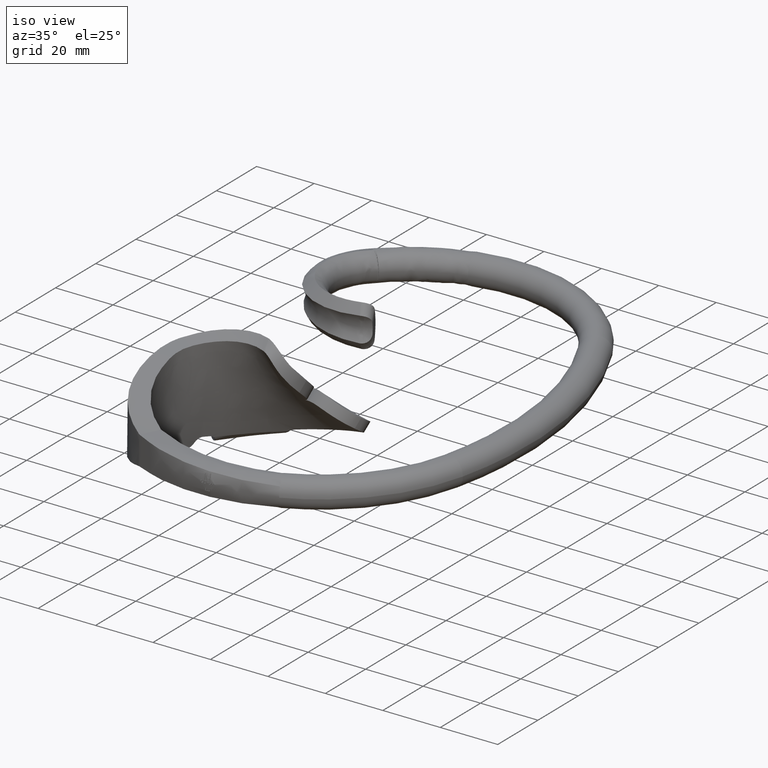
[diagram: clean part render]
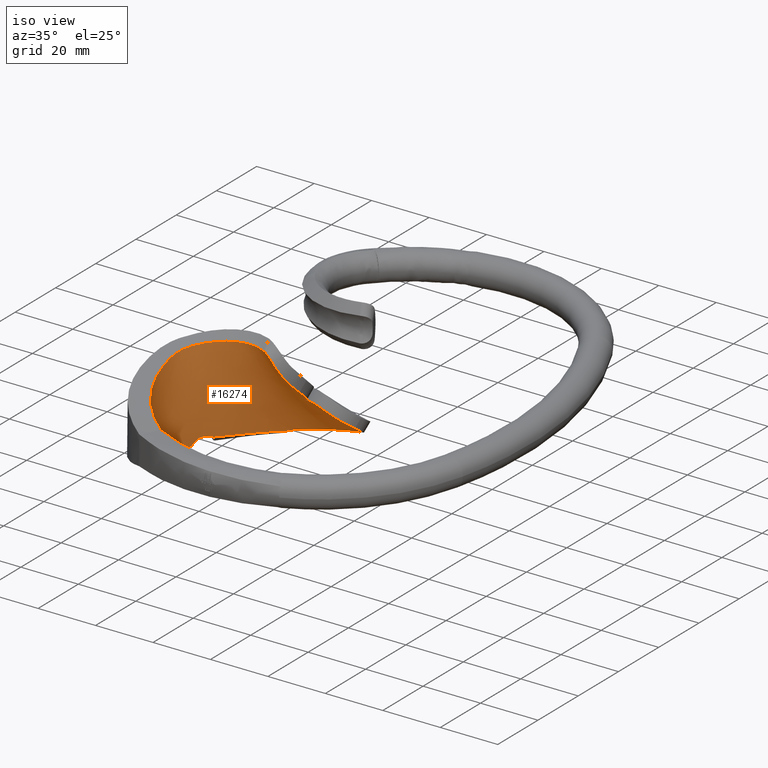
[diagram: same view with one face highlighted and labeled with its STEP entity id]
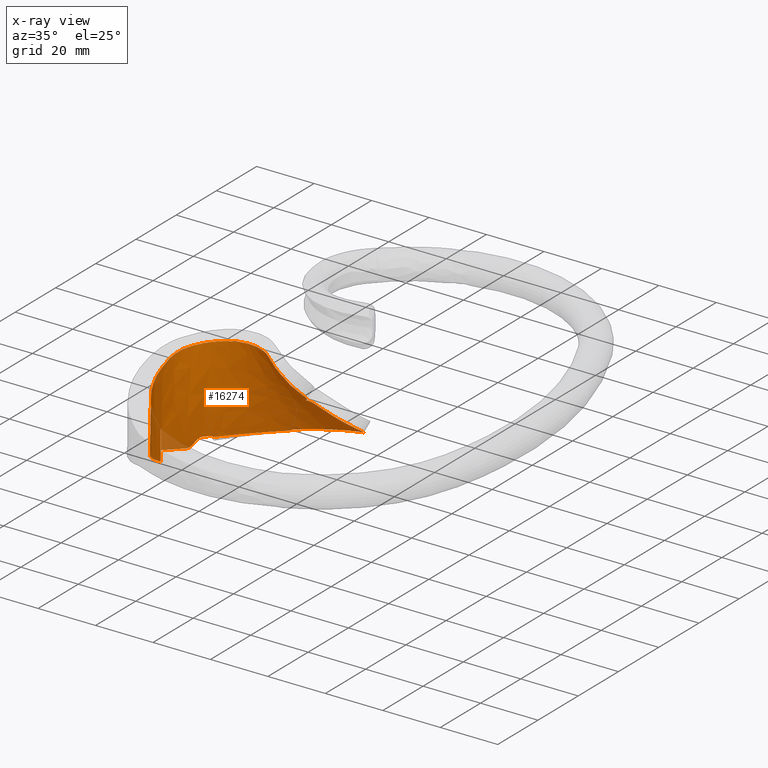
[diagram: x-ray of the same camera — body ghosted, the highlighted face saturated]
A machine part, iso view. The second image highlights one B-rep face of the part: STEP entity #16274.
The next image is the same camera in x-ray: the body ghosted, the highlighted face saturated — about 2% of this face is hidden behind the body in this view.
In plain terms, the highlighted face is a freeform B-spline surface patch.
Its self-contained STEP definition (entity closure, byte-faithful):
#17 = CARTESIAN_POINT ( 'NONE',  ( -25.15636308838697133, -70.89856808884370309, -2.993619090687962725 ) ) ;
#76 = CARTESIAN_POINT ( 'NONE',  ( -11.85933965147747315, -28.81651083051647078, 8.873090973912448831 ) ) ;
#110 = CARTESIAN_POINT ( 'NONE',  ( -23.94503800951884642, -71.46943614712014892, -22.79586670443550389 ) ) ;
#168 = CARTESIAN_POINT ( 'NONE',  ( -9.424205856966944239, -35.10034809157934177, 11.57010724250342193 ) ) ;
#239 = CARTESIAN_POINT ( 'NONE',  ( -38.17918231609935020, -26.81177639004484803, -17.32263586109936071 ) ) ;
#257 = CARTESIAN_POINT ( 'NONE',  ( -2.170113707370573408, -0.4697596640260335299, -19.83448706312192300 ) ) ;
#284 = EDGE_CURVE ( 'NONE', #7959, #18061, #13146, .T. ) ;
#287 = CARTESIAN_POINT ( 'NONE',  ( -23.94796884405930726, -71.46679573571677224, -22.13635806665684314 ) ) ;
#341 = CARTESIAN_POINT ( 'NONE',  ( -6.827262744049596321, -24.11229234274885158, 1.792057882608641073 ) ) ;
#376 = CARTESIAN_POINT ( 'NONE',  ( -32.89577253008506119, -65.52384093907873819, 9.300383025375069224 ) ) ;
#444 = CARTESIAN_POINT ( 'NONE',  ( 6.287571485564525275, -2.785440530479375010, -17.63215813393296827 ) ) ;
#464 = CARTESIAN_POINT ( 'NONE',  ( -40.42148997367045382, -37.84203347478683810, -17.39996963497696569 ) ) ;
#475 = CARTESIAN_POINT ( 'NONE',  ( -29.26865632105030812, -68.72598907279243008, -22.12598497769202766 ) ) ;
#527 = CARTESIAN_POINT ( 'NONE',  ( 1.519493860288021470, -20.98062971235643204, -3.741488555776663727 ) ) ;
#529 = CARTESIAN_POINT ( 'NONE',  ( -4.215273382516429912, -28.68811217135254310, 3.357458307826258981 ) ) ;
#549 = CARTESIAN_POINT ( 'NONE',  ( -40.37261092898496884, -50.75757933140815936, -13.03721842582143076 ) ) ;
#557 = CARTESIAN_POINT ( 'NONE',  ( -29.27272002633730352, -68.72632145866842279, -22.78543988642818974 ) ) ;
#612 = CARTESIAN_POINT ( 'NONE',  ( -25.95665865693987939, -70.48632619060495585, 5.087874757070457221 ) ) ;
#617 = CARTESIAN_POINT ( 'NONE',  ( 14.69466161046312891, -4.659935157866471833, -17.08219604126090729 ) ) ;
#648 = CARTESIAN_POINT ( 'NONE',  ( -32.99304115532973469, -65.64079336796200437, -14.79752622568005904 ) ) ;
#710 = CARTESIAN_POINT ( 'NONE',  ( 11.88982719839217417, -3.416567986732016227, -17.66325361618216405 ) ) ;
#717 = ORIENTED_EDGE ( 'NONE', *, *, #8887, .T. ) ;
#739 = CARTESIAN_POINT ( 'NONE',  ( -29.22360699457052036, -68.72181225661068993, -14.80201196655919027 ) ) ;
#800 = CARTESIAN_POINT ( 'NONE',  ( 4.854428662767720226, -18.07392965529968265, -6.519501663423872273 ) ) ;
#801 = CARTESIAN_POINT ( 'NONE',  ( -8.813134127602813450, -38.88812567784162155, 11.44240416643638802 ) ) ;
#827 = CARTESIAN_POINT ( 'NONE',  ( -39.18285869479490913, -55.55352737365851112, -6.650870622066054061 ) ) ;
#883 = CARTESIAN_POINT ( 'NONE',  ( 12.83266687297161468, -7.833436701719376671, -14.68406907825187169 ) ) ;
#897 = EDGE_CURVE ( 'NONE', #3196, #7493, #1911, .T. ) ;
#909 = CARTESIAN_POINT ( 'NONE',  ( -36.87822848182205604, -61.04061346953627520, -22.83194952766277908 ) ) ;
#996 = CARTESIAN_POINT ( 'NONE',  ( -36.27131980450171511, -60.73880998905355000, 24.10684581082477251 ) ) ;
#1089 = CARTESIAN_POINT ( 'NONE',  ( -38.96912154837355047, -55.30002778924718854, 17.44828987854003799 ) ) ;
#1140 = CARTESIAN_POINT ( 'NONE',  ( -40.44733215418044381, -37.02714774285539079, -17.66127057890986762 ) ) ;
#1158 = CARTESIAN_POINT ( 'NONE',  ( 1.488418423671111324, -9.970063952969960397, -11.65423338362039019 ) ) ;
#1169 = CARTESIAN_POINT ( 'NONE',  ( -31.40748720364642921, -66.85880502812317161, -7.135131382333937289 ) ) ;
#1177 = CARTESIAN_POINT ( 'NONE',  ( -39.25613701649582055, -55.63697141948787817, -14.85425275128173972 ) ) ;
#1243 = CARTESIAN_POINT ( 'NONE',  ( 5.383703232550109519, -16.59774463799570299, -7.569739154405343839 ) ) ;
#1264 = CARTESIAN_POINT ( 'NONE',  ( -37.49282883337470906, -32.22294240802155940, -4.315181299277317528 ) ) ;
#1268 = CARTESIAN_POINT ( 'NONE',  ( -38.22179457882931786, -39.37153673995346281, 15.75267230631868820 ) ) ;
#1335 = CARTESIAN_POINT ( 'NONE',  ( 5.321459531104607343, -16.90790305324771481, -7.360117722204887691 ) ) ;
#1358 = CARTESIAN_POINT ( 'NONE',  ( -38.71703280769304456, -37.86181399395132274, 4.520525172584591189 ) ) ;
#1363 = CARTESIAN_POINT ( 'NONE',  ( -39.78456211468088810, -50.95826924198301100, 12.59001651575711200 ) ) ;
#1410 = CARTESIAN_POINT ( 'NONE',  ( -39.65103422997807314, -32.15771524695254868, -16.17272638493883008 ) ) ;
#1453 = CARTESIAN_POINT ( 'NONE',  ( -31.67943926758341178, -34.89833382324929545, 24.54121984549810520 ) ) ;
#1459 = CARTESIAN_POINT ( 'NONE',  ( -37.16355406481915225, -59.21799781812033814, 10.01059045180241291 ) ) ;
#1540 = CARTESIAN_POINT ( 'NONE',  ( -40.43120142053038535, -43.69622034045324455, -6.728755416404337275 ) ) ;
#1546 = CARTESIAN_POINT ( 'NONE',  ( -31.10313552478493904, -32.90852102020060954, 17.02248135775514015 ) ) ;
#1564 = CARTESIAN_POINT ( 'NONE',  ( -23.18793440330585298, -9.672448330616949974, -17.69015570338858367 ) ) ;
#1597 = CARTESIAN_POINT ( 'NONE',  ( -40.04207946146390640, -33.56284293282416797, -16.96416703511664181 ) ) ;
#1606 = CARTESIAN_POINT ( 'NONE',  ( 16.90474016345067199, -5.691051468541888703, -16.68014020335697722 ) ) ;
#1629 = CARTESIAN_POINT ( 'NONE',  ( -39.00583603675691791, -23.46877938931475072, -23.83685829183065508 ) ) ;
#1636 = CARTESIAN_POINT ( 'NONE',  ( -28.14275097698632422, -31.60580041265582807, 17.29983729951628746 ) ) ;
#1700 = CARTESIAN_POINT ( 'NONE',  ( 1.422567749900367051, -28.31134181289872487, -0.08842545685972652558 ) ) ;
#1703 = CARTESIAN_POINT ( 'NONE',  ( -14.10491572173548924, -32.81009815336776825, 15.51804257377842688 ) ) ;
#1719 = CARTESIAN_POINT ( 'NONE',  ( -33.08464312415222253, -18.74772766288650416, -16.11317577116292199 ) ) ;
#1803 = CARTESIAN_POINT ( 'NONE',  ( -21.35178459087534364, -5.633175773567047351, -21.02962207247946935 ) ) ;
#1879 = CARTESIAN_POINT ( 'NONE',  ( -23.63160245749334010, -30.47558530427247803, 17.10272231315721214 ) ) ;
#1911 = B_SPLINE_CURVE_WITH_KNOTS ( 'NONE', 3,
 ( #8255, #8168, #6170, #26697, #12199, #18257, #16340, #3819, #5994, #22375, #18417, #20566, #14351, #12112 ),
 .UNSPECIFIED., .F., .F.,
 ( 4, 2, 2, 2, 2, 2, 4 ),
 ( -0.001399756533277036943, -0.0002769602674681853269, 0.0008458359983406662889, 0.003091428529958353908, 0.007582613593193718304, 0.01207379865642908313, 0.01656498371966444796 ),
 .UNSPECIFIED. ) ;
#1931 = CARTESIAN_POINT ( 'NONE',  ( -38.53560247259397187, -28.10662117791295600, -16.69472691242890505 ) ) ;
#1962 = CARTESIAN_POINT ( 'NONE',  ( -34.83290137729142799, -16.74210972297696287, -22.24089575303982613 ) ) ;
#1998 = CARTESIAN_POINT ( 'NONE',  ( -23.97144849627143870, -71.43611220647703419, -3.020258888105770811 ) ) ;
#2055 = CARTESIAN_POINT ( 'NONE',  ( -35.00606830998287933, -16.54560991931114344, -22.84783754982057502 ) ) ;
#2086 = CARTESIAN_POINT ( 'NONE',  ( -25.13904935702529642, -70.90790863318960646, 1.107543257758094590 ) ) ;
#2141 = CARTESIAN_POINT ( 'NONE',  ( -18.02911424829177633, -18.49580773000570844, -2.709247704567419035 ) ) ;
#2155 = CARTESIAN_POINT ( 'NONE',  ( -25.20409609200683576, -10.59560876200018598, -18.16559006512890662 ) ) ;
#2175 = CARTESIAN_POINT ( 'NONE',  ( -23.91540041020895657, -71.45733718200850149, 13.38066361369438084 ) ) ;
#2233 = CARTESIAN_POINT ( 'NONE',  ( -0.3247576824265622775, -19.55598552033844229, -3.966977096955083937 ) ) ;
#2258 = CARTESIAN_POINT ( 'NONE',  ( -22.55181714705390306, -9.472418078381974027, -17.45637618163861049 ) ) ;
#2264 = CARTESIAN_POINT ( 'NONE',  ( -24.45473226477183104, -71.22807561610474636, 27.16378249755239338 ) ) ;
#2324 = CARTESIAN_POINT ( 'NONE',  ( -2.188395656375802023, -0.5768480600021126392, -19.73467446920592394 ) ) ;
#2359 = CARTESIAN_POINT ( 'NONE',  ( -23.96547494511408516, -71.44365224261129299, -10.71011142505617642 ) ) ;
#2414 = CARTESIAN_POINT ( 'NONE',  ( -11.82177420855293093, -23.20541951907169320, 2.848094868216339393 ) ) ;
#2443 = CARTESIAN_POINT ( 'NONE',  ( -32.87956838653767022, -65.50212847544513295, 13.40226597670099729 ) ) ;
#2491 = CARTESIAN_POINT ( 'NONE',  ( -11.25412575095327128, -19.60438360516659984, -1.341625945686494292 ) ) ;
#2502 = CARTESIAN_POINT ( 'NONE',  ( -4.209659502832900024, -22.02757111002170376, -1.008636117278711719 ) ) ;
#2504 = CARTESIAN_POINT ( 'NONE',  ( -2.270702196000139228, -1.057955809944554737, -19.28637026218102335 ) ) ;
#2525 = CARTESIAN_POINT ( 'NONE',  ( -39.84599909949422880, -53.13328687308170828, -12.26716838253407182 ) ) ;
#2536 = CARTESIAN_POINT ( 'NONE',  ( -29.19846035694382280, -68.71900797098258806, -10.70082041539447992 ) ) ;
#2560 = CARTESIAN_POINT ( 'NONE',  ( -38.17918231609935020, -26.81177639004484803, -17.32263586109936071 ) ) ;
#2588 = CARTESIAN_POINT ( 'NONE',  ( -25.95711629646404361, -70.48719828455746494, 1.697687603675185120 ) ) ;
#2593 = CARTESIAN_POINT ( 'NONE',  ( 11.34776537666252061, -4.490292300553198501, -16.82709812004663874 ) ) ;
#2615 = CARTESIAN_POINT ( 'NONE',  ( -35.76005792594287414, -61.97925975626360184, -9.184504389061764584 ) ) ;
#2624 = CARTESIAN_POINT ( 'NONE',  ( -28.96880067650137036, -68.67863627021462491, 27.16130558606929668 ) ) ;
#2688 = ORIENTED_EDGE ( 'NONE', *, *, #20612, .T. ) ;
#2689 = CARTESIAN_POINT ( 'NONE',  ( 14.41682587074711819, -5.136486517458090262, -16.72165425923428828 ) ) ;
#2719 = CARTESIAN_POINT ( 'NONE',  ( -29.27362473151131539, -68.72639488330071345, -22.93223906092197595 ) ) ;
#2728 = CARTESIAN_POINT ( 'NONE',  ( -40.44733215418044381, -37.02714774285539079, -17.66127057890986762 ) ) ;
#2772 = CARTESIAN_POINT ( 'NONE',  ( 3.032956453850071732, -20.11066045014272774, -4.761124131381615499 ) ) ;
#2773 = CARTESIAN_POINT ( 'NONE',  ( -8.586950967023252446, -38.40018814973958428, 11.05794790203190381 ) ) ;
#2798 = CARTESIAN_POINT ( 'NONE',  ( -33.02338204003475397, -65.67270126989406265, -22.12222713269066077 ) ) ;
#2806 = CARTESIAN_POINT ( 'NONE',  ( -40.15160679387111742, -34.04669993630096769, -17.34681543380196089 ) ) ;
#2856 = CARTESIAN_POINT ( 'NONE',  ( 10.38348014980281597, -13.80391478341446643, -10.43363627808456151 ) ) ;
#2883 = CARTESIAN_POINT ( 'NONE',  ( -36.67392920990512550, -60.93708458418031881, -6.647521298413098023 ) ) ;
#2973 = CARTESIAN_POINT ( 'NONE',  ( -40.18758634367198113, -49.59624891189578477, 9.098143053421642534 ) ) ;
#3066 = CARTESIAN_POINT ( 'NONE',  ( -39.04164851584852158, -55.38774587478626188, 9.244021740132007281 ) ) ;
#3150 = CARTESIAN_POINT ( 'NONE',  ( -39.28829969350326934, -55.67297660905538947, -18.44313266836507381 ) ) ;
#3159 = VERTEX_POINT ( 'NONE', #10251 ) ;
#3196 = VERTEX_POINT ( 'NONE', #239 ) ;
#3218 = CARTESIAN_POINT ( 'NONE',  ( -11.90507731686455806, -6.643912800835263255, -15.67117883568420034 ) ) ;
#3228 = CARTESIAN_POINT ( 'NONE',  ( -28.80291635684988449, -68.82119638694284447, -6.114153062421459062 ) ) ;
#3238 = CARTESIAN_POINT ( 'NONE',  ( -39.31591523872799598, -55.70362106855007056, -21.51927303422507975 ) ) ;
#3334 = CARTESIAN_POINT ( 'NONE',  ( -40.39266219063269858, -43.45490200577243911, 9.177384731626476722 ) ) ;
#3341 = CARTESIAN_POINT ( 'NONE',  ( -39.47401368594695725, -41.97200671989143217, 15.18215250453548926 ) ) ;
#3382 = CARTESIAN_POINT ( 'NONE',  ( -39.76191980893269573, -32.57770043597175658, -16.31397712802921518 ) ) ;
#3404 = CARTESIAN_POINT ( 'NONE',  ( 3.358462579979020202, -11.53575477559430418, -10.65914590039316501 ) ) ;
#3425 = CARTESIAN_POINT ( 'NONE',  ( -40.77056045482507329, -30.91200997976534026, -21.42264282489114890 ) ) ;
#3430 = CARTESIAN_POINT ( 'NONE',  ( -31.66857054714991548, -33.23288689370993865, 16.95823458038569953 ) ) ;
#3489 = CARTESIAN_POINT ( 'NONE',  ( -10.91996373285246413, -31.56469811184842911, 10.60070670688497785 ) ) ;
#3508 = CARTESIAN_POINT ( 'NONE',  ( -40.95966172930327076, -30.84082564698342921, -22.43038563435690946 ) ) ;
#3514 = CARTESIAN_POINT ( 'NONE',  ( -18.49134877892836926, -31.32376061501808451, 17.33880080018142422 ) ) ;
#3581 = CARTESIAN_POINT ( 'NONE',  ( -7.576413545769306701, -40.02940843602111443, 8.808951510195694112 ) ) ;
#3584 = CARTESIAN_POINT ( 'NONE',  ( -11.58011615218598500, -32.13534227672813870, 11.83439239732888026 ) ) ;
#3602 = CARTESIAN_POINT ( 'NONE',  ( -36.58244477600702282, -38.08081601276846584, 25.05228178509425874 ) ) ;
#3609 = CARTESIAN_POINT ( 'NONE',  ( -38.99399355669622480, -54.63102066103153476, 11.48448671127954235 ) ) ;
#3692 = CARTESIAN_POINT ( 'NONE',  ( -38.81719278309455490, -23.60446768739216239, -23.06510114059616257 ) ) ;
#3697 = CARTESIAN_POINT ( 'NONE',  ( -29.35653634435157144, -32.06076061747394590, 17.20072095290061398 ) ) ;
#3753 = CARTESIAN_POINT ( 'NONE',  ( -17.27508974795539132, -31.81506101191068581, 17.20429503606681720 ) ) ;
#3769 = CARTESIAN_POINT ( 'NONE',  ( -28.23581833708455235, -31.81677678747052340, 18.55450658185389301 ) ) ;
#3819 = CARTESIAN_POINT ( 'NONE',  ( -35.67015811952398252, -21.41044437901498654, -18.15063232593708165 ) ) ;
#3834 = CARTESIAN_POINT ( 'NONE',  ( -13.13831173256087581, -32.80467578203744239, 14.34581816314560321 ) ) ;
#3854 = CARTESIAN_POINT ( 'NONE',  ( -21.19228711596299064, -6.208857047166696397, -20.19204055943594511 ) ) ;
#3928 = CARTESIAN_POINT ( 'NONE',  ( -15.41474314018769753, -32.50571442626596763, 16.57096121371512609 ) ) ;
#3947 = CARTESIAN_POINT ( 'NONE',  ( -22.37273409855731288, -32.15663165640753363, 21.54793603562508508 ) ) ;
#3954 = CARTESIAN_POINT ( 'NONE',  ( -28.11334378683914537, -69.23113804681942440, 5.854101350412985738 ) ) ;
#4032 = CARTESIAN_POINT ( 'NONE',  ( -33.28099429457007830, -27.75486436214071162, -0.9082763546678259692 ) ) ;
#4064 = CARTESIAN_POINT ( 'NONE',  ( -24.55609533634392605, -71.19183091339925795, -21.46331492035912092 ) ) ;
#4114 = CARTESIAN_POINT ( 'NONE',  ( -11.94793719021267897, -33.40419624112588792, 13.74066249903163950 ) ) ;
#4143 = CARTESIAN_POINT ( 'NONE',  ( -25.12560825732365544, -70.91499108685589192, 5.208793489947187716 ) ) ;
#4174 = EDGE_LOOP ( 'NONE', ( #24108, #15442, #9754, #21867, #14528, #13434, #8153, #4567, #24221, #9489, #8749, #2688, #17812, #717 ) ) ;
#4202 = CARTESIAN_POINT ( 'NONE',  ( -11.89893668613540179, -14.85746656110383412, -6.253326687011546703 ) ) ;
#4239 = CARTESIAN_POINT ( 'NONE',  ( -24.55047949773347327, -71.19584326449998457, -22.78233933676434120 ) ) ;
#4302 = CARTESIAN_POINT ( 'NONE',  ( -12.02836958735759865, -9.683465058445902329, -11.98070131975678976 ) ) ;
#4332 = CARTESIAN_POINT ( 'NONE',  ( -23.96242710030521295, -71.44910945981517614, -14.81151666838520065 ) ) ;
#4354 = CARTESIAN_POINT ( 'NONE',  ( -38.21731809415074821, -27.00546736545609861, -17.16723779119075743 ) ) ;
#4384 = CARTESIAN_POINT ( 'NONE',  ( -16.92151232984684128, -23.27612850057458616, 3.895874941252180701 ) ) ;
#4414 = CARTESIAN_POINT ( 'NONE',  ( -23.95515406517058921, -71.45746294032684887, -18.40056819063785909 ) ) ;
#4472 = CARTESIAN_POINT ( 'NONE',  ( -11.85534212817212207, -17.63070217337995160, -3.210948003536747031 ) ) ;
#4506 = CARTESIAN_POINT ( 'NONE',  ( -25.09456405614114161, -70.93050413699667445, 13.41114084544241614 ) ) ;
#4567 = ORIENTED_EDGE ( 'NONE', *, *, #897, .T. ) ;
#4570 = CARTESIAN_POINT ( 'NONE',  ( 4.276981314451538729, -17.96716190221847498, -6.410994176061614702 ) ) ;
#4607 = CARTESIAN_POINT ( 'NONE',  ( -28.98684663615175339, -68.68283852438145232, 24.15791218027598575 ) ) ;
#4628 = VERTEX_POINT ( 'NONE', #8065 ) ;
#4661 = CARTESIAN_POINT ( 'NONE',  ( 2.451758440804513217, -20.49560687197803688, -4.345984020441152396 ) ) ;
#4662 = CARTESIAN_POINT ( 'NONE',  ( -7.702157203810724440, -38.84692328538766048, 9.444182678548207477 ) ) ;
#4690 = CARTESIAN_POINT ( 'NONE',  ( -29.05177279400597001, -68.69646766467610632, 13.39299605116025838 ) ) ;
#4729 = B_SPLINE_CURVE_WITH_KNOTS ( 'NONE', 3,
 ( #15084, #11148, #25640, #4734 ),
 .UNSPECIFIED., .F., .F.,
 ( 4, 4 ),
 ( 0.002824636691624847398, 0.005123194532127502837 ),
 .UNSPECIFIED. ) ;
#4734 = CARTESIAN_POINT ( 'NONE',  ( -39.14469863206568334, -30.26152792145684600, -16.18379702789598440 ) ) ;
#4747 = CARTESIAN_POINT ( 'NONE',  ( 2.941649457101483733, -25.08418572576823280, -2.100446320880012596 ) ) ;
#4775 = CARTESIAN_POINT ( 'NONE',  ( -27.79573026822009396, -12.44838988080779885, -18.36136370116568628 ) ) ;
#4776 = EDGE_CURVE ( 'NONE', #14518, #17134, #19335, .T. ) ;
#4779 = CARTESIAN_POINT ( 'NONE',  ( -29.10149709847920718, -68.70536435757823313, 5.190984603981855017 ) ) ;
#4789 = CARTESIAN_POINT ( 'NONE',  ( -40.38000876078989165, -35.96225030535704548, -17.86310568809399513 ) ) ;
#4836 = CARTESIAN_POINT ( 'NONE',  ( 9.509340277706137101, -13.36920051877304871, -10.51872407385756425 ) ) ;
#4866 = CARTESIAN_POINT ( 'NONE',  ( -32.92847984392184912, -65.56567062661657985, 1.096716157739455300 ) ) ;
#4930 = CARTESIAN_POINT ( 'NONE',  ( -6.161366708650409585, -21.74659955446341542, -0.5418166541902440514 ) ) ;
#4931 = CARTESIAN_POINT ( 'NONE',  ( 0.9648841222299170406, -27.97682574284740653, 0.02209645307068544562 ) ) ;
#4960 = CARTESIAN_POINT ( 'NONE',  ( -38.91036558057857064, -55.22756264625337508, 24.11451572342008021 ) ) ;
#5009 = CARTESIAN_POINT ( 'NONE',  ( -10.10783522503681375, -20.51907402847522377, -0.5743506490684487931 ) ) ;
#5047 = CARTESIAN_POINT ( 'NONE',  ( -39.70581091733252066, -49.47782072110199181, 25.63742650011927893 ) ) ;
#5089 = CARTESIAN_POINT ( 'NONE',  ( -39.30568765222745498, -30.84021203436239134, -16.06223304353683901 ) ) ;
#5132 = CARTESIAN_POINT ( 'NONE',  ( -38.89553193668651687, -55.20909549174127307, 25.79974232514386756 ) ) ;
#5183 = CARTESIAN_POINT ( 'NONE',  ( -39.45896626574581489, -31.42770078062414996, -16.04868792074065453 ) ) ;
#5229 = CARTESIAN_POINT ( 'NONE',  ( -41.01392439473193718, -49.83436638420467801, -20.62001476595645144 ) ) ;
#5252 = B_SPLINE_SURFACE_WITH_KNOTS ( 'NONE', 3, 3, ( 
 ( #8315, #110, #287, #14500, #16766, #4414, #4332, #2359, #22890, #1998, #24972, #22793, #14682, #2175, #18578, #14599, #20461, #20547, #16592, #16407 ),
 ( #6332, #4239, #20637, #4064, #18487, #6417, #12529, #18758, #12620, #8239, #18666, #8147, #22522, #10213, #24784, #8408, #10483, #24873, #24612, #2264 ),
 ( #10564, #12442, #16682, #12266, #10301, #14329, #22616, #24699, #12360, #17, #2086, #4143, #22711, #4506, #12800, #6783, #25334, #21173, #15041, #19201 ),
 ( #12889, #18933, #6879, #10656, #8865, #25153, #25246, #23351, #16866, #25416, #10755, #22987, #6513, #19117, #17128, #14862, #17039, #13068, #6610, #20996 ),
 ( #2719, #557, #475, #14960, #11013, #8675, #739, #2536, #25057, #20900, #23259, #4779, #16953, #4690, #15122, #23079, #4607, #19024, #21259, #2624 ),
 ( #14769, #8593, #2798, #10924, #12979, #6701, #648, #8953, #17224, #21090, #4866, #12718, #376, #2443, #8770, #23165, #10847, #11104, #15586, #13417 ),
 ( #25503, #909, #9219, #23610, #23518, #17490, #11277, #17663, #2883, #13145, #7049, #7236, #25678, #25766, #19286, #6965, #996, #9031, #13506, #13237 ),
 ( #13329, #25862, #15391, #3238, #21350, #3150, #1177, #21706, #827, #23777, #21607, #23435, #3066, #17394, #1089, #15212, #4960, #5132, #17304, #19375 ),
 ( #19546, #19467, #21433, #9128, #5229, #11364, #17577, #11454, #11187, #9302, #25598, #15302, #2973, #23697, #15487, #19640, #7320, #5047, #9394, #7145 ),
 ( #21520, #24056, #20087, #21878, #11723, #7500, #26131, #5681, #1540, #25952, #13695, #17857, #3334, #11627, #5596, #24147, #19995, #13871, #18027, #15673 ),
 ( #17757, #7771, #9490, #7682, #5411, #24233, #9576, #21793, #5324, #17943, #15952, #1358, #15861, #11890, #19824, #23969, #26037, #3602, #13781, #23869 ),
 ( #22061, #15764, #22143, #3508, #3425, #5501, #9664, #11538, #19909, #1264, #26309, #9845, #9752, #11809, #13959, #13601, #7597, #21968, #1453, #26225 ),
 ( #1629, #16032, #3692, #19735, #7405, #16286, #12144, #14297, #16466, #18453, #4032, #6113, #26388, #6027, #7943, #3769, #24577, #8111, #14036, #12232 ),
 ( #26562, #14382, #2055, #1962, #26729, #20513, #1719, #22579, #20430, #12323, #14203, #16201, #26647, #18116, #18207, #1879, #16115, #5853, #3947, #24484 ),
 ( #20251, #22320, #8203, #10184, #16375, #10268, #10010, #18364, #5763, #20172, #7861, #22408, #22492, #24669, #22227, #9925, #24319, #26468, #11977, #10096 ),
 ( #24397, #12067, #14118, #1803, #3854, #18286, #5944, #20338, #8023, #16650, #2141, #10450, #4384, #22951, #18816, #12684, #16830, #14467, #10535, #16562 ),
 ( #8285, #6477, #22764, #22854, #20961, #16736, #24941, #4302, #12412, #4202, #4472, #10621, #2414, #23051, #76, #12587, #4114, #18546, #14829, #8470 ),
 ( #257, #2324, #2504, #20869, #12498, #18902, #14655, #8562, #6578, #20693, #25026, #6301, #341, #8645, #14738, #24753, #168, #18727, #18633, #24839 ),
 ( #10719, #25119, #12772, #444, #8373, #6205, #14566, #20602, #22677, #10355, #2233, #6388, #20782, #529, #9098, #21146, #6669, #16925, #2773, #801 ),
 ( #710, #23492, #14928, #2593, #23223, #25476, #23324, #21062, #25213, #4570, #11162, #21321, #23409, #17008, #17193, #11076, #25569, #4662, #8922, #7019 ),
 ( #13208, #617, #2689, #18990, #8734, #883, #13120, #4836, #23132, #25305, #6848, #21229, #8834, #15100, #10983, #15277, #19085, #10815, #6758, #19259 ),
 ( #12856, #6939, #10897, #12948, #15184, #9007, #15016, #2856, #25387, #17096, #17284, #4747, #4931, #19177, #19345, #21408, #13039, #11250, #3581, #26292 ),
 ( #18094, #1606, #24127, #13762, #15363, #5662, #13300, #21492, #17460, #18007, #22040, #9823, #1700, #17368, #11790, #19441, #24300, #24034, #17925, #9730 ) ),
 .UNSPECIFIED., .F., .F., .F.,
 ( 4, 2, 1, 1, 1, 1, 1, 1, 1, 1, 1, 1, 1, 1, 1, 1, 1, 2, 4 ),
 ( 4, 1, 2, 1, 1, 1, 1, 1, 1, 1, 1, 1, 1, 1, 2, 4 ),
 ( -0.02219854027614791628, 0.000000000000000000, 0.03333333333333333287, 0.1000000000000000056, 0.1666666666666666574, 0.2333333333333333370, 0.2999999999999999889, 0.3666666666666666408, 0.4333333333333333481, 0.5000000000000000000, 0.5666666666666666519, 0.6333333333333333037, 0.6999999999999999556, 0.7666666666666666075, 0.8333333333333333703, 0.9000000000000000222, 0.9666666666666666741, 1.000000000000000000, 1.022369391427201180 ),
 ( -0.04287835196614685207, -0.03333333333333333287, 0.000000000000000000, 0.03333333333333333287, 0.1333333333333333315, 0.2333333333333333370, 0.2999999999999999889, 0.4000000000000000222, 0.4666666666666666741, 0.5666666666666666519, 0.6666666666666666297, 0.7333333333333332815, 0.8333333333333333703, 0.9333333333333333481, 1.000000000000000000, 1.042878192357305167 ),
 .UNSPECIFIED. ) ;
#5306 = CARTESIAN_POINT ( 'NONE',  ( -14.83608060280493035, -6.952835872777915149, -16.25967196102808288 ) ) ;
#5316 = CARTESIAN_POINT ( 'NONE',  ( -34.23795596544177045, -63.92272189216190270, -8.411056143218118564 ) ) ;
#5324 = CARTESIAN_POINT ( 'NONE',  ( -39.72798985727568777, -37.82116659155661864, -7.217074762357145623 ) ) ;
#5389 = CARTESIAN_POINT ( 'NONE',  ( -0.01205557800311476101, -9.034060317989332844, -12.30277786439886079 ) ) ;
#5411 = CARTESIAN_POINT ( 'NONE',  ( -40.72129270706133752, -37.84404156612870196, -21.00793650526745893 ) ) ;
#5482 = CARTESIAN_POINT ( 'NONE',  ( 5.336403860632825236, -15.00488925644786065, -8.582776638535417391 ) ) ;
#5501 = CARTESIAN_POINT ( 'NONE',  ( -40.39171915219402820, -31.05537255765002058, -19.40739333985605342 ) ) ;
#5576 = CARTESIAN_POINT ( 'NONE',  ( -20.53882624873995155, -8.556032757211919915, -17.19293920272239617 ) ) ;
#5596 = CARTESIAN_POINT ( 'NONE',  ( -40.38760447713808333, -43.32081874152153489, 17.38912338285654613 ) ) ;
#5602 = CARTESIAN_POINT ( 'NONE',  ( -35.90899318601559997, -61.35029062142383793, 9.263900235074258305 ) ) ;
#5662 = CARTESIAN_POINT ( 'NONE',  ( 14.86640213221264517, -8.818156232219056534, -14.36527646289086135 ) ) ;
#5681 = CARTESIAN_POINT ( 'NONE',  ( -40.44744609318238560, -43.75464593658076495, -10.83273487806894941 ) ) ;
#5686 = CARTESIAN_POINT ( 'NONE',  ( -35.21524646458401264, -62.38407613973532051, 8.886277461513822473 ) ) ;
#5763 = CARTESIAN_POINT ( 'NONE',  ( -25.51330516564762974, -17.09562881692986736, -8.807841628078948659 ) ) ;
#5768 = CARTESIAN_POINT ( 'NONE',  ( -24.31041535979998969, -30.81966347909119008, 17.46500157086153493 ) ) ;
#5853 = CARTESIAN_POINT ( 'NONE',  ( -22.54170478978170777, -31.92967822944799750, 20.95095035180365883 ) ) ;
#5925 = CARTESIAN_POINT ( 'NONE',  ( -15.10606801034477797, -32.59786068703484574, 16.37177370250959640 ) ) ;
#5944 = CARTESIAN_POINT ( 'NONE',  ( -20.32679121468696337, -9.387841979847863172, -15.59209957420052817 ) ) ;
#5994 = CARTESIAN_POINT ( 'NONE',  ( -34.89794215595966165, -20.13326382961767536, -18.27427086207293883 ) ) ;
#6009 = CARTESIAN_POINT ( 'NONE',  ( -13.36700594531185793, -32.82993948464628886, 14.65416393707018550 ) ) ;
#6027 = CARTESIAN_POINT ( 'NONE',  ( -30.27020011543506328, -30.14704066759851386, 10.78184196585138821 ) ) ;
#6034 = CARTESIAN_POINT ( 'NONE',  ( -32.87278162277126370, -65.28417648861855582, 7.754324219248616146 ) ) ;
#6113 = CARTESIAN_POINT ( 'NONE',  ( -32.28334938839527268, -28.53642420886022890, 2.992775608797904496 ) ) ;
#6170 = CARTESIAN_POINT ( 'NONE',  ( -37.90855723294900059, -26.11578004368014660, -17.44072429509754585 ) ) ;
#6205 = CARTESIAN_POINT ( 'NONE',  ( 5.426437966863298712, -5.073795513937762180, -15.75035361200580830 ) ) ;
#6301 = CARTESIAN_POINT ( 'NONE',  ( -6.160167712878441115, -21.08912945064741962, -0.9273013199526061179 ) ) ;
#6332 = CARTESIAN_POINT ( 'NONE',  ( -24.54989976449909506, -71.19626949706557184, -22.92915282285796152 ) ) ;
#6388 = CARTESIAN_POINT ( 'NONE',  ( -1.597848136114206063, -22.60167553545941743, -1.514629622419865429 ) ) ;
#6400 = CARTESIAN_POINT ( 'NONE',  ( -26.53281779806984275, -11.47045897056045582, -18.28366226520564908 ) ) ;
#6417 = CARTESIAN_POINT ( 'NONE',  ( -24.55904208704697567, -71.18810591753471329, -18.38701336031001077 ) ) ;
#6477 = CARTESIAN_POINT ( 'NONE',  ( -12.35840700968399197, -1.623419363265867998, -21.04231950159460141 ) ) ;
#6513 = CARTESIAN_POINT ( 'NONE',  ( -26.58106165956414202, -70.16466084914793555, 9.324115195866824024 ) ) ;
#6578 = CARTESIAN_POINT ( 'NONE',  ( -4.366265986857824188, -12.42001372461299447, -8.800582992897718171 ) ) ;
#6610 = CARTESIAN_POINT ( 'NONE',  ( -26.57059451848742171, -70.15663543084980347, 26.53839727961172912 ) ) ;
#6667 = CARTESIAN_POINT ( 'NONE',  ( -6.558959238041355277, -21.65236124717128163, -0.4874301432241164300 ) ) ;
#6669 = CARTESIAN_POINT ( 'NONE',  ( -7.788325249955120100, -36.66515848856749216, 9.688809337215120721 ) ) ;
#6681 = CARTESIAN_POINT ( 'NONE',  ( -39.14469863206568334, -30.26152792145684600, -16.18379702789598440 ) ) ;
#6690 = CARTESIAN_POINT ( 'NONE',  ( -38.94613195711163911, -55.85769091889061855, -11.36009171894873404 ) ) ;
#6701 = CARTESIAN_POINT ( 'NONE',  ( -33.00786289954597663, -65.65662374305530591, -18.38648051803087924 ) ) ;
#6758 = CARTESIAN_POINT ( 'NONE',  ( -7.689893859865047254, -39.82508694289431617, 9.097756367310184444 ) ) ;
#6783 = CARTESIAN_POINT ( 'NONE',  ( -25.06276792669124376, -70.94541026755297253, 21.61341122083660338 ) ) ;
#6848 = CARTESIAN_POINT ( 'NONE',  ( 4.258421078694091477, -21.81434291042506501, -4.205638577514780430 ) ) ;
#6879 = CARTESIAN_POINT ( 'NONE',  ( -26.60481630513714890, -70.16060392965898984, -22.09881334490108884 ) ) ;
#6938 = CARTESIAN_POINT ( 'NONE',  ( 0.5338834164033674501, -21.38873475829501913, -3.151483672203271968 ) ) ;
#6939 = CARTESIAN_POINT ( 'NONE',  ( 15.81441076709879212, -5.155636850670210158, -16.88138244227273432 ) ) ;
#6957 = CARTESIAN_POINT ( 'NONE',  ( -40.44426920463649822, -41.03930604444997954, -16.18116093726881388 ) ) ;
#6965 = CARTESIAN_POINT ( 'NONE',  ( -36.30561323029072440, -60.75540363867260396, 21.54409885739593378 ) ) ;
#6972 = CARTESIAN_POINT ( 'NONE',  ( -40.06439177978367638, -33.67775756244701313, -17.07018957531157355 ) ) ;
#7018 = CARTESIAN_POINT ( 'NONE',  ( -10.62837963446381728, -20.00550116115951127, -0.9922283095801069930 ) ) ;
#7019 = CARTESIAN_POINT ( 'NONE',  ( -8.276610602275576767, -39.79493589021407018, 10.15621069733435533 ) ) ;
#7030 = CARTESIAN_POINT ( 'NONE',  ( 4.854428662767720226, -18.07392965529968265, -6.519501663423872273 ) ) ;
#7049 = CARTESIAN_POINT ( 'NONE',  ( -36.57502844063584746, -60.88769211026876604, 1.041339626111777106 ) ) ;
#7145 = CARTESIAN_POINT ( 'NONE',  ( -39.66676883542720589, -49.46883557276122900, 26.95525131434484933 ) ) ;
#7185 = B_SPLINE_CURVE_WITH_KNOTS ( 'NONE', 3,
 ( #1931, #20570, #14891, #23101, #4354, #2560 ),
 .UNSPECIFIED., .F., .F.,
 ( 4, 2, 4 ),
 ( 6.709591079197869798E-17, 0.0007430099253467525519, 0.001486019850693437883 ),
 .UNSPECIFIED. ) ;
#7192 = CARTESIAN_POINT ( 'NONE',  ( -39.79842284283777332, -32.71533527858021984, -16.37409701256311578 ) ) ;
#7236 = CARTESIAN_POINT ( 'NONE',  ( -36.52182577257017471, -60.86130141006465522, 5.141997049584470680 ) ) ;
#7282 = CARTESIAN_POINT ( 'NONE',  ( -8.348257383601811910, -25.99135297645904430, 3.919640872915400642 ) ) ;
#7320 = CARTESIAN_POINT ( 'NONE',  ( -39.75554476760444089, -49.48939454799414506, 23.95406115216827558 ) ) ;
#7386 = CARTESIAN_POINT ( 'NONE',  ( -8.561867518711453684, -27.14404828468800801, 4.999564812468368480 ) ) ;
#7405 = CARTESIAN_POINT ( 'NONE',  ( -38.42206272763866792, -23.89015517651180431, -21.45308166977072517 ) ) ;
#7453 = CARTESIAN_POINT ( 'NONE',  ( -39.14469863206568334, -30.26152792145684600, -16.18379702789598440 ) ) ;
#7456 = CARTESIAN_POINT ( 'NONE',  ( -8.462526121665897350, -23.47524387155451464, 1.787413591369922505 ) ) ;
#7493 = VERTEX_POINT ( 'NONE', #4775 ) ;
#7500 = CARTESIAN_POINT ( 'NONE',  ( -40.48507474708927845, -43.86002418494515354, -18.52682411034345478 ) ) ;
#7507 = CARTESIAN_POINT ( 'NONE',  ( -40.13412981191267903, -47.22983550209690407, 13.68194747380154475 ) ) ;
#7597 = CARTESIAN_POINT ( 'NONE',  ( -32.15256864076528842, -34.66454640822210109, 22.25462253368255006 ) ) ;
#7602 = CARTESIAN_POINT ( 'NONE',  ( -39.59028155917057035, -52.19235661238418089, 12.22393849308232738 ) ) ;
#7682 = CARTESIAN_POINT ( 'NONE',  ( -40.78674462571336079, -37.84851665312366009, -22.02992054682432510 ) ) ;
#7688 = CARTESIAN_POINT ( 'NONE',  ( -23.66085870229003518, -30.77566497544479063, 17.47523111579887001 ) ) ;
#7751 = CARTESIAN_POINT ( 'NONE',  ( -7.527982088621546275, -6.723007532063265401, -14.66521528203355196 ) ) ;
#7752 = CARTESIAN_POINT ( 'NONE',  ( -12.50747765716963400, -32.64585932209134000, 13.41179766782285299 ) ) ;
#7771 = CARTESIAN_POINT ( 'NONE',  ( -40.86911739313099901, -37.85487923088812323, -23.34468621298876911 ) ) ;
#7861 = CARTESIAN_POINT ( 'NONE',  ( -23.79193430064599113, -20.56247698648497035, -2.146208154212438046 ) ) ;
#7943 = CARTESIAN_POINT ( 'NONE',  ( -29.25597326556835753, -30.97342630603931823, 14.67054203131988288 ) ) ;
#7959 = VERTEX_POINT ( 'NONE', #26281 ) ;
#8023 = CARTESIAN_POINT ( 'NONE',  ( -19.11646199140381697, -14.06346575751109462, -8.929045025513513423 ) ) ;
#8065 = CARTESIAN_POINT ( 'NONE',  ( -21.89908596438062816, -9.175271541369172112, -17.37095426991938041 ) ) ;
#8111 = CARTESIAN_POINT ( 'NONE',  ( -27.17339388729057958, -32.70737016711895961, 22.57269318236529543 ) ) ;
#8118 = CARTESIAN_POINT ( 'NONE',  ( -30.14758441452654836, -67.78862973861777164, 6.620689098485479818 ) ) ;
#8140 = CARTESIAN_POINT ( 'NONE',  ( -21.89908596438062816, -9.175271541369172112, -17.37095426991938041 ) ) ;
#8147 = CARTESIAN_POINT ( 'NONE',  ( -24.53884549162030382, -71.19201579760938614, 5.195341778679566147 ) ) ;
#8153 = ORIENTED_EDGE ( 'NONE', *, *, #10929, .T. ) ;
#8168 = CARTESIAN_POINT ( 'NONE',  ( -38.04626649102532809, -26.46276043297877578, -17.38111349359557778 ) ) ;
#8203 = CARTESIAN_POINT ( 'NONE',  ( -29.06254823516581709, -10.26959506754523588, -22.32760060014310355 ) ) ;
#8239 = CARTESIAN_POINT ( 'NONE',  ( -24.56917805835012913, -71.17752849174118523, -3.006211069767940725 ) ) ;
#8255 = CARTESIAN_POINT ( 'NONE',  ( -38.17918231609935020, -26.81177639004484803, -17.32263586109936071 ) ) ;
#8285 = CARTESIAN_POINT ( 'NONE',  ( -12.36331883339442328, -1.526032181071053984, -21.15282744582590979 ) ) ;
#8315 = CARTESIAN_POINT ( 'NONE',  ( -23.94439872160717542, -71.47001881969272574, -22.94267838895590828 ) ) ;
#8373 = CARTESIAN_POINT ( 'NONE',  ( 6.001203769716853209, -3.548241367125069434, -17.00458453991021202 ) ) ;
#8408 = CARTESIAN_POINT ( 'NONE',  ( -24.47671374393334887, -71.21916422244689215, 21.59785981765102036 ) ) ;
#8470 = CARTESIAN_POINT ( 'NONE',  ( -12.00288409930363365, -35.47905370471404751, 15.92729159916351023 ) ) ;
#8562 = CARTESIAN_POINT ( 'NONE',  ( -3.782828056028468833, -9.412510938992554088, -11.55710714513412363 ) ) ;
#8593 = CARTESIAN_POINT ( 'NONE',  ( -33.02613110681958375, -65.67549907938273179, -22.78174681577529981 ) ) ;
#8645 = CARTESIAN_POINT ( 'NONE',  ( -7.514526815740944166, -27.13886111128019962, 4.502437594487394001 ) ) ;
#8675 = CARTESIAN_POINT ( 'NONE',  ( -29.24566069682953895, -68.72397281048861828, -18.39058724305733961 ) ) ;
#8734 = CARTESIAN_POINT ( 'NONE',  ( 13.70366049533183350, -6.353219076599229354, -15.80202681402504616 ) ) ;
#8749 = ORIENTED_EDGE ( 'NONE', *, *, #23383, .F. ) ;
#8758 = CARTESIAN_POINT ( 'NONE',  ( -36.22080790581837562, -61.30408525077854165, -9.440339336967980444 ) ) ;
#8770 = CARTESIAN_POINT ( 'NONE',  ( -32.86345498981934554, -65.47991342971521078, 17.50418035751171786 ) ) ;
#8834 = CARTESIAN_POINT ( 'NONE',  ( 0.4964208090904775883, -27.65720988120187585, 0.1337958288281241026 ) ) ;
#8865 = CARTESIAN_POINT ( 'NONE',  ( -26.60338492639687047, -70.16141287070104227, -20.41386807075651433 ) ) ;
#8887 = EDGE_CURVE ( 'NONE', #18474, #18017, #13623, .T. ) ;
#8922 = CARTESIAN_POINT ( 'NONE',  ( -7.988944833744937135, -39.32103812117010477, 9.800404238164590609 ) ) ;
#8953 = CARTESIAN_POINT ( 'NONE',  ( -32.97622876613969822, -65.62212656110064302, -10.69582980351961687 ) ) ;
#8961 = CARTESIAN_POINT ( 'NONE',  ( -40.34859117458974254, -35.49407335043292022, -17.84345532011876756 ) ) ;
#9007 = CARTESIAN_POINT ( 'NONE',  ( 13.86308866381408578, -8.307778079583425068, -14.52512321203969847 ) ) ;
#9022 = CARTESIAN_POINT ( 'NONE',  ( -40.62727158714503162, -47.54057898194834308, -14.06837368822288425 ) ) ;
#9031 = CARTESIAN_POINT ( 'NONE',  ( -36.24872935156464138, -60.72789910936658941, 25.79125207752795035 ) ) ;
#9085 = CARTESIAN_POINT ( 'NONE',  ( -9.214884947641202473, -21.61694826154776550, 0.3074700478057891262 ) ) ;
#9098 = CARTESIAN_POINT ( 'NONE',  ( -5.555603994967492021, -31.72885491692315796, 5.778993104032386086 ) ) ;
#9117 = CARTESIAN_POINT ( 'NONE',  ( -27.41114994665388238, -69.69832266325535386, -5.598531943877788741 ) ) ;
#9128 = CARTESIAN_POINT ( 'NONE',  ( -41.04151605294026695, -49.84312316997457515, -21.64491767044709292 ) ) ;
#9219 = CARTESIAN_POINT ( 'NONE',  ( -36.87000785882760567, -61.03640761972260265, -22.17254650296451501 ) ) ;
#9302 = CARTESIAN_POINT ( 'NONE',  ( -40.53569697702960895, -49.69094257364477585, -3.198042363644847175 ) ) ;
#9350 = CARTESIAN_POINT ( 'NONE',  ( -8.459723074865975079, -26.59326458847206354, 4.483425720888582156 ) ) ;
#9394 = CARTESIAN_POINT ( 'NONE',  ( -39.68630796023764162, -49.47331563592677384, 26.29633648129968293 ) ) ;
#9489 = ORIENTED_EDGE ( 'NONE', *, *, #21499, .T. ) ;
#9490 = CARTESIAN_POINT ( 'NONE',  ( -40.82828725671181758, -37.85157857028659834, -22.68727708967827184 ) ) ;
#9576 = CARTESIAN_POINT ( 'NONE',  ( -40.34448473737769092, -37.82503725602511935, -15.38788222149551821 ) ) ;
#9581 = CARTESIAN_POINT ( 'NONE',  ( -29.94778952434355190, -32.32286771330858954, 17.14360385857272107 ) ) ;
#9664 = CARTESIAN_POINT ( 'NONE',  ( -39.72429738123820897, -31.31323152884540306, -15.88236773526667811 ) ) ;
#9670 = CARTESIAN_POINT ( 'NONE',  ( -38.61699637349200032, -55.81509073367556795, 11.11541708432728726 ) ) ;
#9730 = CARTESIAN_POINT ( 'NONE',  ( -7.819375634609641246, -40.68807191483256958, 8.840812357429895130 ) ) ;
#9732 = CARTESIAN_POINT ( 'NONE',  ( 5.429041667910379232, -15.64210818605055842, -8.188156567162060639 ) ) ;
#9752 = CARTESIAN_POINT ( 'NONE',  ( -35.10822695055229303, -33.26757231789370195, 7.731623934380467134 ) ) ;
#9754 = ORIENTED_EDGE ( 'NONE', *, *, #11854, .F. ) ;
#9758 = CARTESIAN_POINT ( 'NONE',  ( -40.08532601566764697, -44.71429812649337521, 14.40794659618721774 ) ) ;
#9823 = CARTESIAN_POINT ( 'NONE',  ( 3.480061596898604837, -25.44651357309821904, -2.169257588829520689 ) ) ;
#9845 = CARTESIAN_POINT ( 'NONE',  ( -35.90975536203527696, -32.90766580785694373, 3.718908281329827314 ) ) ;
#9850 = CARTESIAN_POINT ( 'NONE',  ( -40.15389758277526511, -46.60357552756023836, 13.86107291644191442 ) ) ;
#9925 = CARTESIAN_POINT ( 'NONE',  ( -19.32664840831639452, -30.08079765669506500, 15.50615913048524952 ) ) ;
#9931 = CARTESIAN_POINT ( 'NONE',  ( -37.49426374162440823, -38.30876563623097297, 15.94570858096657240 ) ) ;
#9991 = CARTESIAN_POINT ( 'NONE',  ( -11.93590539176203258, -32.37291828451824927, 12.46476731095597756 ) ) ;
#10010 = CARTESIAN_POINT ( 'NONE',  ( -27.37564924434350999, -13.45865275256497462, -15.93802580047173478 ) ) ;
#10096 = CARTESIAN_POINT ( 'NONE',  ( -18.14861557162188888, -32.73534430245086213, 20.26879529540861924 ) ) ;
#10184 = CARTESIAN_POINT ( 'NONE',  ( -28.90995363586871036, -10.55497380758502679, -21.75158877801300505 ) ) ;
#10213 = CARTESIAN_POINT ( 'NONE',  ( -24.50820042253041464, -71.20578407125589138, 13.39670082542705920 ) ) ;
#10251 = CARTESIAN_POINT ( 'NONE',  ( -23.81009535546364120, -9.827145263809288878, -18.01168259817532658 ) ) ;
#10268 = CARTESIAN_POINT ( 'NONE',  ( -28.19969804288624005, -11.88985419426891532, -19.06633912012504339 ) ) ;
#10301 = CARTESIAN_POINT ( 'NONE',  ( -25.15452110094860316, -70.89895038561931528, -20.42570831139348186 ) ) ;
#10355 = CARTESIAN_POINT ( 'NONE',  ( 0.9275189980740661255, -16.50905974435942625, -6.428822060562985108 ) ) ;
#10450 = CARTESIAN_POINT ( 'NONE',  ( -17.46766401062490459, -20.87839115628725750, 0.5975895149453819277 ) ) ;
#10483 = CARTESIAN_POINT ( 'NONE',  ( -24.46649391835886433, -71.22335614789706426, 24.16066726965874523 ) ) ;
#10535 = CARTESIAN_POINT ( 'NONE',  ( -14.77892659962879840, -33.48175502036621509, 17.65469515574731574 ) ) ;
#10564 = CARTESIAN_POINT ( 'NONE',  ( -25.14781576752483971, -70.90273118200944680, -22.91703794740801214 ) ) ;
#10621 = CARTESIAN_POINT ( 'NONE',  ( -11.82845904555498429, -20.41280608655856099, -0.1765874275543035943 ) ) ;
#10656 = CARTESIAN_POINT ( 'NONE',  ( -26.60425401974409709, -70.16092780792942563, -21.43928784157003165 ) ) ;
#10719 = CARTESIAN_POINT ( 'NONE',  ( 6.694398507251484887, -1.694992087536907555, -18.53038240766752409 ) ) ;
#10755 = CARTESIAN_POINT ( 'NONE',  ( -26.58666911626611906, -70.16590178438053726, 1.120371248023812605 ) ) ;
#10764 = CARTESIAN_POINT ( 'NONE',  ( -40.24995921595150605, -34.58670511471375875, -17.63305059948954323 ) ) ;
#10810 = CARTESIAN_POINT ( 'NONE',  ( -25.95759512115328249, -70.48811074996456227, -5.082686932611969688 ) ) ;
#10815 = CARTESIAN_POINT ( 'NONE',  ( -7.369149296386638959, -39.36119893338433684, 8.757742614160559214 ) ) ;
#10837 = CARTESIAN_POINT ( 'NONE',  ( -38.20256986943513766, -57.75821125497536457, -10.71625326108445186 ) ) ;
#10847 = CARTESIAN_POINT ( 'NONE',  ( -32.83749590437049193, -65.44250733711456292, 24.16987363089968710 ) ) ;
#10897 = CARTESIAN_POINT ( 'NONE',  ( 15.52317612360985422, -5.629028487567123484, -16.52711205285447349 ) ) ;
#10916 = CARTESIAN_POINT ( 'NONE',  ( -34.76206511847699687, -63.28896432758231327, -8.668635678923074295 ) ) ;
#10924 = CARTESIAN_POINT ( 'NONE',  ( -33.02063744857845506, -65.66988381263018937, -21.46270874689459873 ) ) ;
#10929 = EDGE_CURVE ( 'NONE', #17722, #3196, #7185, .T. ) ;
#10983 = CARTESIAN_POINT ( 'NONE',  ( -3.353392293972635496, -33.47290280495293047, 4.430880506061379620 ) ) ;
#11013 = CARTESIAN_POINT ( 'NONE',  ( -29.25828170305763720, -68.72509694959673254, -20.44121392750234989 ) ) ;
#11024 = CARTESIAN_POINT ( 'NONE',  ( -40.33556731140280505, -35.34069593126292830, -17.82360173283414184 ) ) ;
#11076 = CARTESIAN_POINT ( 'NONE',  ( -5.865716333601595167, -35.79005708192185864, 7.144311081186172530 ) ) ;
#11104 = CARTESIAN_POINT ( 'NONE',  ( -32.83096888156383386, -65.43283791544367034, 25.85494662838779689 ) ) ;
#11148 = CARTESIAN_POINT ( 'NONE',  ( -38.77106397043392150, -28.81858122182231696, -16.53650649956956897 ) ) ;
#11152 = CARTESIAN_POINT ( 'NONE',  ( -8.898503468028085450, -22.21683350475613850, 0.7802493721996754950 ) ) ;
#11161 = CARTESIAN_POINT ( 'NONE',  ( -5.374128397642119026, -21.89622276123179390, -0.6917565756592435333 ) ) ;
#11162 = CARTESIAN_POINT ( 'NONE',  ( 2.643012635129682320, -20.94994821249615669, -4.125359693922636239 ) ) ;
#11187 = CARTESIAN_POINT ( 'NONE',  ( -40.63561162566529106, -49.71958795015830646, -6.784694245058861206 ) ) ;
#11232 = CARTESIAN_POINT ( 'NONE',  ( -39.96972346595556047, -33.35123903053361261, -16.75205889008773852 ) ) ;
#11250 = CARTESIAN_POINT ( 'NONE',  ( -7.241801437307092471, -39.57042989571760927, 8.475651116284311115 ) ) ;
#11277 = CARTESIAN_POINT ( 'NONE',  ( -36.77815650125469205, -60.98963043738344680, -14.84915902776639207 ) ) ;
#11364 = CARTESIAN_POINT ( 'NONE',  ( -40.95864917514619208, -49.81690594924219084, -18.57022230516594519 ) ) ;
#11454 = CARTESIAN_POINT ( 'NONE',  ( -40.74889682571426164, -49.75288093940166334, -10.88386689360365267 ) ) ;
#11517 = CARTESIAN_POINT ( 'NONE',  ( 5.405928848052239388, -16.43874592255975386, -7.675238975661889285 ) ) ;
#11519 = CARTESIAN_POINT ( 'NONE',  ( -9.778767756764169761, -30.04419823707095105, 8.249164632949106846 ) ) ;
#11538 = CARTESIAN_POINT ( 'NONE',  ( -38.95401478950724083, -31.61997043568834442, -11.85665587021832401 ) ) ;
#11600 = B_SPLINE_CURVE_WITH_KNOTS ( 'NONE', 3,
 ( #15260, #11232, #16995, #7192, #3382, #24013, #1410, #21659, #5183, #5089, #21923, #7453 ),
 .UNSPECIFIED., .F., .F.,
 ( 4, 2, 2, 2, 2, 4 ),
 ( 2.506660416483125471E-16, 0.0009096604934462664471, 0.001364490740169280788, 0.001819320986892295237, 0.002728981480338326521, 0.003638641973784357588 ),
 .UNSPECIFIED. ) ;
#11627 = CARTESIAN_POINT ( 'NONE',  ( -40.38894730146191137, -43.38864779418535988, 13.28307593807254960 ) ) ;
#11635 = CARTESIAN_POINT ( 'NONE',  ( -17.27508974795539132, -31.81506101191068581, 17.20429503606681720 ) ) ;
#11702 = CARTESIAN_POINT ( 'NONE',  ( 4.615192700464727515, -13.16084410454913645, -9.686580847516118808 ) ) ;
#11723 = CARTESIAN_POINT ( 'NONE',  ( -40.49688611528485183, -43.88712294884466303, -20.57837587321166595 ) ) ;
#11730 = CARTESIAN_POINT ( 'NONE',  ( -40.12975962342984815, -45.34569778149688801, 14.22368106478795902 ) ) ;
#11790 = CARTESIAN_POINT ( 'NONE',  ( -2.758043160912252212, -34.01735815947991171, 4.038026243689016859 ) ) ;
#11809 = CARTESIAN_POINT ( 'NONE',  ( -34.30094601165134804, -33.63788816081988386, 11.74174849718275127 ) ) ;
#11814 = CARTESIAN_POINT ( 'NONE',  ( -39.99633457859417973, -49.09884356960704110, 13.13916404576845842 ) ) ;
#11854 = EDGE_CURVE ( 'NONE', #14518, #18061, #23392, .T. ) ;
#11873 = CARTESIAN_POINT ( 'NONE',  ( -12.12103565862489596, -32.47624967961449016, 12.78195099967275539 ) ) ;
#11890 = CARTESIAN_POINT ( 'NONE',  ( -37.92383319047184642, -37.92562456371319968, 12.67933357015187568 ) ) ;
#11895 = CARTESIAN_POINT ( 'NONE',  ( -33.70085927235410850, -64.36562403498116680, 8.128761794662823448 ) ) ;
#11977 = CARTESIAN_POINT ( 'NONE',  ( -18.28743647674907180, -32.41945713295876885, 19.70524645989425849 ) ) ;
#11983 = CARTESIAN_POINT ( 'NONE',  ( -26.24351574858247105, -31.09977457961623415, 17.40653764773059464 ) ) ;
#12048 = CARTESIAN_POINT ( 'NONE',  ( -14.66177330319821159, -32.70983160746416729, 16.03074600022566543 ) ) ;
#12067 = CARTESIAN_POINT ( 'NONE',  ( -21.55821913200247408, -4.894051769363432669, -22.10774510484501221 ) ) ;
#12087 = CARTESIAN_POINT ( 'NONE',  ( -23.81009535546364120, -9.827145263809288878, -18.01168259817532658 ) ) ;
#12112 = CARTESIAN_POINT ( 'NONE',  ( -27.79573026822009396, -12.44838988080779885, -18.36136370116568628 ) ) ;
#12126 = CARTESIAN_POINT ( 'NONE',  ( -12.70925704552084490, -32.71251268539950985, 13.72542227580403207 ) ) ;
#12144 = CARTESIAN_POINT ( 'NONE',  ( -37.09301327406121374, -24.86105112045040499, -16.06128800937041845 ) ) ;
#12199 = CARTESIAN_POINT ( 'NONE',  ( -37.47872688681872688, -25.08269337444386338, -17.62387819572181513 ) ) ;
#12232 = CARTESIAN_POINT ( 'NONE',  ( -26.84260878440526810, -32.98672949140880206, 23.81933288257177495 ) ) ;
#12266 = CARTESIAN_POINT ( 'NONE',  ( -25.15275942334511328, -70.89997028456639327, -21.45117828919255842 ) ) ;
#12323 = CARTESIAN_POINT ( 'NONE',  ( -30.00342590344117255, -22.40772184626609231, -5.307538169074205392 ) ) ;
#12360 = CARTESIAN_POINT ( 'NONE',  ( -25.16349201589097007, -70.89433143637083390, -6.582355441343799463 ) ) ;
#12412 = CARTESIAN_POINT ( 'NONE',  ( -11.95163405987027083, -12.43870912200903689, -8.922396387971838649 ) ) ;
#12442 = CARTESIAN_POINT ( 'NONE',  ( -25.14827540219668478, -70.90247208825202563, -22.77022264190032175 ) ) ;
#12498 = CARTESIAN_POINT ( 'NONE',  ( -2.484015558811584867, -2.287805390997684540, -18.14234092997723025 ) ) ;
#12508 = EDGE_CURVE ( 'NONE', #17722, #22971, #4729, .T. ) ;
#12529 = CARTESIAN_POINT ( 'NONE',  ( -24.56495663875714541, -71.18287857257435292, -14.79795201293679163 ) ) ;
#12587 = CARTESIAN_POINT ( 'NONE',  ( -11.90721907299239746, -31.63649248687620030, 11.87168807035089735 ) ) ;
#12620 = CARTESIAN_POINT ( 'NONE',  ( -24.57529063415972104, -71.17463969013519431, -6.594691853271106297 ) ) ;
#12684 = CARTESIAN_POINT ( 'NONE',  ( -15.36332233493649291, -30.54683739944291787, 13.74620278948079921 ) ) ;
#12694 = EDGE_CURVE ( 'NONE', #17134, #22971, #11600, .T. ) ;
#12718 = CARTESIAN_POINT ( 'NONE',  ( -32.91206915646916542, -65.54505342491097508, 5.198531195846814335 ) ) ;
#12772 = CARTESIAN_POINT ( 'NONE',  ( 6.471097982625523493, -2.294824446814928809, -18.03608122583214524 ) ) ;
#12800 = CARTESIAN_POINT ( 'NONE',  ( -25.07861609417741633, -70.93812474859083750, 17.51228310410490963 ) ) ;
#12856 = CARTESIAN_POINT ( 'NONE',  ( 15.87919722644469722, -5.050245400021056597, -16.96026514062026180 ) ) ;
#12879 = CARTESIAN_POINT ( 'NONE',  ( -40.48826997862627763, -49.95888075113320070, -13.29391388208355274 ) ) ;
#12889 = CARTESIAN_POINT ( 'NONE',  ( -26.60550914606269046, -70.16018844205119365, -22.90515520894872381 ) ) ;
#12947 = CARTESIAN_POINT ( 'NONE',  ( -4.984215886364378179, -21.95208948614819988, -0.7867740952489661321 ) ) ;
#12948 = CARTESIAN_POINT ( 'NONE',  ( 15.23104589293937394, -6.102194157924393458, -16.17323877216231054 ) ) ;
#12979 = CARTESIAN_POINT ( 'NONE',  ( -33.01637564260835944, -65.66547958641746163, -20.43730027130780869 ) ) ;
#13035 = CARTESIAN_POINT ( 'NONE',  ( -25.95741491374445431, -70.48776734029840441, -1.692499658341828583 ) ) ;
#13039 = CARTESIAN_POINT ( 'NONE',  ( -6.389207603281944259, -38.39686146652761067, 7.623160394542240148 ) ) ;
#13058 = CARTESIAN_POINT ( 'NONE',  ( -40.42270935532562959, -38.63551627587425230, -17.07850122041664775 ) ) ;
#13068 = CARTESIAN_POINT ( 'NONE',  ( -26.57096489230058367, -70.15707609259672495, 25.87881985560192177 ) ) ;
#13076 = CARTESIAN_POINT ( 'NONE',  ( -40.28992302898201672, -34.88597965359480924, -17.73426733490579821 ) ) ;
#13119 = CARTESIAN_POINT ( 'NONE',  ( -3.059433882320258036, -22.05034439186521666, -1.415334202414015419 ) ) ;
#13120 = CARTESIAN_POINT ( 'NONE',  ( 11.29361241036312791, -10.41996401282349183, -12.73463759922608318 ) ) ;
#13145 = CARTESIAN_POINT ( 'NONE',  ( -36.62792061813354394, -60.91405028900517493, -3.059364573642847862 ) ) ;
#13146 = B_SPLINE_CURVE_WITH_KNOTS ( 'NONE', 3,
 ( #612, #2588, #13035, #10810 ),
 .UNSPECIFIED., .F., .F.,
 ( 4, 4 ),
 ( 0.0009121252791474353770, 0.01108268716850033427 ),
 .UNSPECIFIED. ) ;
#13154 = CARTESIAN_POINT ( 'NONE',  ( -40.04207946146390640, -33.56284293282416797, -16.96416703511664181 ) ) ;
#13208 = CARTESIAN_POINT ( 'NONE',  ( 14.75646557190860086, -4.553841604851627700, -17.16247457032991264 ) ) ;
#13237 = CARTESIAN_POINT ( 'NONE',  ( -36.23100632132614152, -60.71935420274829198, 27.10988225237636584 ) ) ;
#13300 = CARTESIAN_POINT ( 'NONE',  ( 13.18341641456760271, -11.36556702992823453, -12.48421109942120033 ) ) ;
#13329 = CARTESIAN_POINT ( 'NONE',  ( -39.32908709059497454, -55.71816629552215971, -22.98508605133706340 ) ) ;
#13381 = CARTESIAN_POINT ( 'NONE',  ( -8.352728532721370058, -24.10905938805214888, 2.302704213102992448 ) ) ;
#13417 = CARTESIAN_POINT ( 'NONE',  ( -32.82586970529013826, -65.42520473657282309, 27.17408889960485396 ) ) ;
#13434 = ORIENTED_EDGE ( 'NONE', *, *, #12508, .F. ) ;
#13485 = CARTESIAN_POINT ( 'NONE',  ( 1.776799413222354129, -10.17679316385475907, -11.51765322202460595 ) ) ;
#13497 = CARTESIAN_POINT ( 'NONE',  ( -33.96964216603917919, -64.23269973694469570, -8.282702190884165816 ) ) ;
#13506 = CARTESIAN_POINT ( 'NONE',  ( -36.23987421703095890, -60.72362722982050087, 26.45056630968657529 ) ) ;
#13579 = CARTESIAN_POINT ( 'NONE',  ( -10.43432366519866861, -6.597006724835587477, -15.35112256988446866 ) ) ;
#13601 = CARTESIAN_POINT ( 'NONE',  ( -32.66829986185729240, -34.41205549597904678, 19.75359148700780310 ) ) ;
#13623 = B_SPLINE_CURVE_WITH_KNOTS ( 'NONE', 3,
 ( #21859, #7386, #26111, #21775, #23849, #11519, #25933, #15840, #3489, #22389, #3584, #9991, #11873, #7752, #12126, #3834, #6009, #26295, #1703, #22043, #12048, #20411, #5925, #3928, #24465, #18010, #26541, #24383, #16267, #3753 ),
 .UNSPECIFIED., .F., .F.,
 ( 4, 2, 2, 2, 2, 2, 2, 2, 2, 2, 2, 2, 2, 2, 4 ),
 ( 0.000000000000000000, 0.002260829099224532460, 0.004521658198449064921, 0.006782487297673596947, 0.009043316396898129841, 0.01017373094651039846, 0.01130414549612266707, 0.01243456004573493569, 0.01356497459534720083, 0.01469538914495946945, 0.01526059641976560549, 0.01582580369457173980, 0.01639101096937787064, 0.01695621824418400148, 0.01808663279379626315 ),
 .UNSPECIFIED. ) ;
#13675 = CARTESIAN_POINT ( 'NONE',  ( 5.281490276534891670, -17.06006331596085701, -7.255373090872847541 ) ) ;
#13695 = CARTESIAN_POINT ( 'NONE',  ( -40.40773321722576839, -43.58246304514001679, 0.9671062224048072586 ) ) ;
#13700 = CARTESIAN_POINT ( 'NONE',  ( -40.05532962288739185, -48.47748021779230498, 13.32103606421931197 ) ) ;
#13762 = CARTESIAN_POINT ( 'NONE',  ( 16.29525937657068013, -6.630151738105505288, -15.98439813067161985 ) ) ;
#13764 = CARTESIAN_POINT ( 'NONE',  ( -3.989007750953652565, -7.442284381700299711, -13.67473207339331687 ) ) ;
#13781 = CARTESIAN_POINT ( 'NONE',  ( -36.50696368126190805, -38.09100389762352279, 25.70719162217555720 ) ) ;
#13789 = CARTESIAN_POINT ( 'NONE',  ( -37.70888754717650926, -58.11190444037676883, 10.37851444485767516 ) ) ;
#13871 = CARTESIAN_POINT ( 'NONE',  ( -40.39343573922306518, -43.17685948340927382, 25.74953827692456798 ) ) ;
#13877 = CARTESIAN_POINT ( 'NONE',  ( -39.15950511830758529, -54.02734843177055524, 11.66933894148517759 ) ) ;
#13959 = CARTESIAN_POINT ( 'NONE',  ( -33.48797721842124986, -34.01865863220319852, 15.74925903701624996 ) ) ;
#13965 = CARTESIAN_POINT ( 'NONE',  ( -27.51889490422132667, -31.41302402565371921, 17.34121697422797936 ) ) ;
#14036 = CARTESIAN_POINT ( 'NONE',  ( -27.00809595234243687, -32.84675915649092559, 23.19611158679458995 ) ) ;
#14118 = CARTESIAN_POINT ( 'NONE',  ( -21.45475387730979833, -5.263338894709203686, -21.56854715662252886 ) ) ;
#14203 = CARTESIAN_POINT ( 'NONE',  ( -28.93550548941105305, -23.71181418334426638, -1.559115564237415263 ) ) ;
#14297 = CARTESIAN_POINT ( 'NONE',  ( -36.11766507272668036, -25.58745198401599907, -12.14536156931071353 ) ) ;
#14329 = CARTESIAN_POINT ( 'NONE',  ( -25.15419511293240973, -70.89895812160825983, -18.37487031487539824 ) ) ;
#14351 = CARTESIAN_POINT ( 'NONE',  ( -28.97268601118049958, -13.35956145909205262, -18.43400417861727547 ) ) ;
#14382 = CARTESIAN_POINT ( 'NONE',  ( -35.17928847654926017, -16.34974438532463381, -23.45495792467585261 ) ) ;
#14409 = EDGE_CURVE ( 'NONE', #23534, #18474, #24549, .T. ) ;
#14467 = CARTESIAN_POINT ( 'NONE',  ( -14.85653288082262691, -33.08651833042870294, 17.12998865292352946 ) ) ;
#14479 = CARTESIAN_POINT ( 'NONE',  ( -27.79573026822009396, -12.44838988080779885, -18.36136370116568628 ) ) ;
#14500 = CARTESIAN_POINT ( 'NONE',  ( -23.95121188212625896, -71.46402664810267424, -21.47686180592853944 ) ) ;
#14518 = VERTEX_POINT ( 'NONE', #1140 ) ;
#14528 = ORIENTED_EDGE ( 'NONE', *, *, #12694, .T. ) ;
#14566 = CARTESIAN_POINT ( 'NONE',  ( 4.406359579337954635, -7.743145736855020722, -13.56188006345378660 ) ) ;
#14579 = CARTESIAN_POINT ( 'NONE',  ( -23.81009535546364120, -9.827145263809288878, -18.01168259817532658 ) ) ;
#14599 = CARTESIAN_POINT ( 'NONE',  ( -23.88640954456902321, -71.46744326194961161, 21.58063099131905815 ) ) ;
#14655 = CARTESIAN_POINT ( 'NONE',  ( -3.219079543288943412, -6.409025481921013068, -14.32236125460623377 ) ) ;
#14682 = CARTESIAN_POINT ( 'NONE',  ( -23.92891956255541075, -71.45254859720287754, 9.280526324615406608 ) ) ;
#14738 = CARTESIAN_POINT ( 'NONE',  ( -8.222033217428935004, -30.16873952714813356, 7.203799438821157253 ) ) ;
#14759 = CARTESIAN_POINT ( 'NONE',  ( -40.60432216712710840, -45.91688281933830496, -14.58974266425201627 ) ) ;
#14769 = CARTESIAN_POINT ( 'NONE',  ( -33.02674328947622939, -65.67612091679839637, -22.92856053729023813 ) ) ;
#14826 = CARTESIAN_POINT ( 'NONE',  ( -2.679008294823386649, -22.03375656270425864, -1.568202024655618088 ) ) ;
#14829 = CARTESIAN_POINT ( 'NONE',  ( -11.98985960287723884, -35.02306186456413428, 15.44767903177132062 ) ) ;
#14852 = CARTESIAN_POINT ( 'NONE',  ( -40.05072973144822157, -52.34473858740385310, -12.52397227852369355 ) ) ;
#14862 = CARTESIAN_POINT ( 'NONE',  ( -26.57339653625252396, -70.15971161548809221, 21.62997205080004903 ) ) ;
#14891 = CARTESIAN_POINT ( 'NONE',  ( -38.38906013299960307, -27.64859507530643867, -16.82523067609231404 ) ) ;
#14927 = CARTESIAN_POINT ( 'NONE',  ( -7.724690564052135500, -21.32447625114779655, -0.3993630189646107942 ) ) ;
#14928 = CARTESIAN_POINT ( 'NONE',  ( 11.59215641589387147, -4.007273700378293668, -17.20308285458538933 ) ) ;
#14949 = CARTESIAN_POINT ( 'NONE',  ( -40.44733215418044381, -37.02714774285539079, -17.66127057890986762 ) ) ;
#14957 = EDGE_CURVE ( 'NONE', #18017, #7959, #24030, .T. ) ;
#14960 = CARTESIAN_POINT ( 'NONE',  ( -29.26459455374745033, -68.72564526161512788, -21.46652879129488056 ) ) ;
#15016 = CARTESIAN_POINT ( 'NONE',  ( 12.25109100226025127, -10.87622501165300903, -12.61005040738250926 ) ) ;
#15041 = CARTESIAN_POINT ( 'NONE',  ( -25.04323547628120039, -70.95408168459458409, 26.52073007522247394 ) ) ;
#15084 = CARTESIAN_POINT ( 'NONE',  ( -38.53560247259397187, -28.10662117791295600, -16.69472691242890505 ) ) ;
#15088 = CARTESIAN_POINT ( 'NONE',  ( -10.93540599308114203, -19.80854498396234575, -1.163549431946345303 ) ) ;
#15100 = CARTESIAN_POINT ( 'NONE',  ( -1.418050005398016733, -30.56835218304092194, 2.287385667298618586 ) ) ;
#15122 = CARTESIAN_POINT ( 'NONE',  ( -29.02698788844073974, -68.69157259053959308, 17.49395065376513969 ) ) ;
#15130 = CARTESIAN_POINT ( 'NONE',  ( -40.17776475983427531, -34.17748272888059802, -17.42544502617382562 ) ) ;
#15183 = CARTESIAN_POINT ( 'NONE',  ( 4.517398176740710092, -18.66982685725965041, -6.065619406544451309 ) ) ;
#15184 = CARTESIAN_POINT ( 'NONE',  ( 14.77576544902299993, -6.837594025266136022, -15.62352590313781775 ) ) ;
#15212 = CARTESIAN_POINT ( 'NONE',  ( -38.93294564615303699, -55.25557034917378019, 21.55055286109976720 ) ) ;
#15260 = CARTESIAN_POINT ( 'NONE',  ( -40.04207946146390640, -33.56284293282416797, -16.96416703511664181 ) ) ;
#15277 = CARTESIAN_POINT ( 'NONE',  ( -5.313723693617824040, -36.36936035854766658, 6.562243563483002973 ) ) ;
#15287 = CARTESIAN_POINT ( 'NONE',  ( 5.137616179187302734, -17.50834990971357286, -6.940911549124128221 ) ) ;
#15302 = CARTESIAN_POINT ( 'NONE',  ( -40.30463179301164445, -49.62716274151337359, 4.999582989467469929 ) ) ;
#15363 = CARTESIAN_POINT ( 'NONE',  ( 15.81967495831660919, -7.359712871129189260, -15.44433991269657547 ) ) ;
#15391 = CARTESIAN_POINT ( 'NONE',  ( -39.32183978746746078, -55.71017316686552334, -22.17877304563781848 ) ) ;
#15442 = ORIENTED_EDGE ( 'NONE', *, *, #284, .T. ) ;
#15476 = CARTESIAN_POINT ( 'NONE',  ( -26.69165531483362486, -70.10640647373857348, -5.336206140840613621 ) ) ;
#15487 = CARTESIAN_POINT ( 'NONE',  ( -39.95085117645095352, -49.53617935589979737, 17.29480462111678207 ) ) ;
#15564 = CARTESIAN_POINT ( 'NONE',  ( 5.256269915080104660, -14.68394273622941526, -8.777633715652369162 ) ) ;
#15575 = CARTESIAN_POINT ( 'NONE',  ( -29.47285190874711347, -68.35215892399823190, -6.369853617610332641 ) ) ;
#15586 = CARTESIAN_POINT ( 'NONE',  ( -32.82841753469634227, -65.42903189355600091, 26.51451854308793443 ) ) ;
#15634 = CARTESIAN_POINT ( 'NONE',  ( -10.64270216199362196, -20.03294285610298786, -0.9748253320272270983 ) ) ;
#15673 = CARTESIAN_POINT ( 'NONE',  ( -40.39525535793504929, -43.15348992024456720, 27.07024476836911475 ) ) ;
#15678 = CARTESIAN_POINT ( 'NONE',  ( -39.12069010727608287, -41.08219788988665755, 15.40028233613168140 ) ) ;
#15744 = CARTESIAN_POINT ( 'NONE',  ( 3.821478626526614519, -12.04605397082219831, -10.35114046909425412 ) ) ;
#15764 = CARTESIAN_POINT ( 'NONE',  ( -41.20222068203654686, -30.75031576550560075, -23.72685134648100558 ) ) ;
#15840 = CARTESIAN_POINT ( 'NONE',  ( -10.61670062863740682, -31.22408998515525624, 10.00104162672042207 ) ) ;
#15861 = CARTESIAN_POINT ( 'NONE',  ( -38.32885377817795813, -37.89026332193184743, 8.600579896685417225 ) ) ;
#15868 = CARTESIAN_POINT ( 'NONE',  ( -36.23639248059274109, -60.82390156446867735, 9.451413693697247709 ) ) ;
#15952 = CARTESIAN_POINT ( 'NONE',  ( -39.08492073699712677, -37.84144403694609338, 0.4389877055623110369 ) ) ;
#15957 = CARTESIAN_POINT ( 'NONE',  ( -39.76341296198165054, -42.87084812052795968, 14.94204552927214280 ) ) ;
#16032 = CARTESIAN_POINT ( 'NONE',  ( -38.97149848422885299, -23.49346235265911531, -23.69633321084755906 ) ) ;
#16038 = CARTESIAN_POINT ( 'NONE',  ( -19.75011760212330358, -31.01626877555139217, 17.41639310558494103 ) ) ;
#16115 = CARTESIAN_POINT ( 'NONE',  ( -22.97367712572770415, -31.35147998548348625, 19.42526405216424124 ) ) ;
#16201 = CARTESIAN_POINT ( 'NONE',  ( -27.86963281516193547, -25.03110880673871819, 2.184336793908875585 ) ) ;
#16267 = CARTESIAN_POINT ( 'NONE',  ( -16.92047825792308657, -31.95765387333690555, 17.16553409769099758 ) ) ;
#16274 = ADVANCED_FACE ( 'NONE', ( #25591 ), #5252, .T. ) ;
#16286 = CARTESIAN_POINT ( 'NONE',  ( -37.94029515537582142, -24.23975900834120267, -19.49152089795978782 ) ) ;
#16340 = CARTESIAN_POINT ( 'NONE',  ( -36.70145933112828374, -23.39086728434601525, -17.89107503033307012 ) ) ;
#16375 = CARTESIAN_POINT ( 'NONE',  ( -28.67300182151154786, -10.99943087725817570, -20.85630911294869705 ) ) ;
#16407 = CARTESIAN_POINT ( 'NONE',  ( -23.86612959949215806, -71.47424574434595002, 27.14567004571823716 ) ) ;
#16443 = VERTEX_POINT ( 'NONE', #18344 ) ;
#16466 = CARTESIAN_POINT ( 'NONE',  ( -35.13659108859197744, -26.32755581304670045, -8.233098739592664472 ) ) ;
#16562 = CARTESIAN_POINT ( 'NONE',  ( -14.70186835963527372, -33.87750017171060790, 18.17910068786988731 ) ) ;
#16592 = CARTESIAN_POINT ( 'NONE',  ( -23.86850166552813945, -71.47347085081314333, 26.48644055481153714 ) ) ;
#16650 = CARTESIAN_POINT ( 'NONE',  ( -18.60318416369216266, -16.12593495135390143, -6.023175320623416873 ) ) ;
#16682 = CARTESIAN_POINT ( 'NONE',  ( -25.15038857687187246, -70.90128464919168039, -22.11069687727015065 ) ) ;
#16736 = CARTESIAN_POINT ( 'NONE',  ( -12.22017581319190249, -4.544177035997884140, -17.73810487989184992 ) ) ;
#16766 = CARTESIAN_POINT ( 'NONE',  ( -23.95401746771707252, -71.46099149319206845, -20.45135898209121805 ) ) ;
#16830 = CARTESIAN_POINT ( 'NONE',  ( -15.05620561490852438, -32.07807107229828603, 15.78870902284432098 ) ) ;
#16866 = CARTESIAN_POINT ( 'NONE',  ( -26.59229885936893822, -70.16558805292767431, -6.570525454612372585 ) ) ;
#16925 = CARTESIAN_POINT ( 'NONE',  ( -8.361651551453862297, -37.91216643110207229, 10.67308563847728031 ) ) ;
#16944 = CARTESIAN_POINT ( 'NONE',  ( -39.35842395264912597, -54.70035202923870088, -11.74841195570590102 ) ) ;
#16953 = CARTESIAN_POINT ( 'NONE',  ( -29.07660930217241813, -68.70106418069981657, 9.292007253434711345 ) ) ;
#16995 = CARTESIAN_POINT ( 'NONE',  ( -39.90402439276395796, -33.10999654715886464, -16.58037106691590168 ) ) ;
#17008 = CARTESIAN_POINT ( 'NONE',  ( -2.394393699481862647, -29.86944662604146927, 2.668280727003774278 ) ) ;
#17030 = CARTESIAN_POINT ( 'NONE',  ( -35.01830724757106594, -62.96453157369782616, -8.798108697163852909 ) ) ;
#17039 = CARTESIAN_POINT ( 'NONE',  ( -26.57192048999324641, -70.15816033035326882, 24.19373341796367782 ) ) ;
#17096 = CARTESIAN_POINT ( 'NONE',  ( 6.823873613152474427, -19.27533583792552463, -6.381086142844151432 ) ) ;
#17128 = CARTESIAN_POINT ( 'NONE',  ( -26.57584783291346042, -70.16180192396636528, 17.52798505300885878 ) ) ;
#17134 = VERTEX_POINT ( 'NONE', #1597 ) ;
#17139 = CARTESIAN_POINT ( 'NONE',  ( -40.40958522173085754, -36.73258671505273298, -17.77159427716772200 ) ) ;
#17192 = CARTESIAN_POINT ( 'NONE',  ( -8.479435775623304750, -21.04399059913198045, -0.4377061317348258096 ) ) ;
#17193 = CARTESIAN_POINT ( 'NONE',  ( -4.117327547338543781, -32.83277125306306488, 4.912291342278038542 ) ) ;
#17224 = CARTESIAN_POINT ( 'NONE',  ( -32.95951963519364369, -65.60297671813611942, -6.594104270072690177 ) ) ;
#17234 = CARTESIAN_POINT ( 'NONE',  ( -40.09500629725922494, -33.79707412793754173, -17.16948971911154942 ) ) ;
#17284 = CARTESIAN_POINT ( 'NONE',  ( 4.893245107067605737, -22.18316668973833927, -4.235550772241353457 ) ) ;
#17304 = CARTESIAN_POINT ( 'NONE',  ( -38.88972768943178693, -55.20185238685294848, 26.45937239538409003 ) ) ;
#17313 = CARTESIAN_POINT ( 'NONE',  ( -40.37080015047156678, -35.80439200450963000, -17.86328979649762161 ) ) ;
#17368 = CARTESIAN_POINT ( 'NONE',  ( -0.6564959101097883609, -31.16846754692607391, 1.980724299385089315 ) ) ;
#17385 = CARTESIAN_POINT ( 'NONE',  ( -25.95759512115328249, -70.48811074996456227, -5.082686932611969688 ) ) ;
#17394 = CARTESIAN_POINT ( 'NONE',  ( -39.00535826306700926, -55.34406203799279922, 13.34611837538703405 ) ) ;
#17460 = CARTESIAN_POINT ( 'NONE',  ( 9.265233949319378937, -17.16406956681720786, -8.220259189738094108 ) ) ;
#17490 = CARTESIAN_POINT ( 'NONE',  ( -36.82329110946741224, -61.01256574067132021, -18.43744217416880105 ) ) ;
#17542 = CARTESIAN_POINT ( 'NONE',  ( -9.865011622517723566, -20.78159097205082873, -0.3619983256997638676 ) ) ;
#17577 = CARTESIAN_POINT ( 'NONE',  ( -40.86127544343448648, -49.78672403248175726, -14.98317959362792884 ) ) ;
#17644 = CARTESIAN_POINT ( 'NONE',  ( -12.64370662322897054, -6.698951755832057486, -15.82453681633105447 ) ) ;
#17663 = CARTESIAN_POINT ( 'NONE',  ( -36.72619886925635768, -60.96337509149985578, -10.74831753358501629 ) ) ;
#17722 = VERTEX_POINT ( 'NONE', #25273 ) ;
#17735 = CARTESIAN_POINT ( 'NONE',  ( 5.442733462331531769, -15.96110501912973589, -7.986806987107907041 ) ) ;
#17757 = CARTESIAN_POINT ( 'NONE',  ( -40.87817116805655360, -37.85562584690172372, -23.49103263587532098 ) ) ;
#17812 = ORIENTED_EDGE ( 'NONE', *, *, #14409, .T. ) ;
#17834 = CARTESIAN_POINT ( 'NONE',  ( 2.596018911202288226, -10.83197735608058210, -11.09724353304640587 ) ) ;
#17857 = CARTESIAN_POINT ( 'NONE',  ( -40.39875930895246370, -43.51959977774088628, 5.072042552669872251 ) ) ;
#17863 = CARTESIAN_POINT ( 'NONE',  ( -35.78236600781739440, -36.35960253596435621, 16.31704363344409714 ) ) ;
#17925 = CARTESIAN_POINT ( 'NONE',  ( -7.469784637016171125, -40.23524137214415219, 8.514815164786027069 ) ) ;
#17927 = CARTESIAN_POINT ( 'NONE',  ( -1.284203061885619945, -8.409770791333500028, -12.78340129943027215 ) ) ;
#17943 = CARTESIAN_POINT ( 'NONE',  ( -39.43583316211162781, -37.82762724791801645, -3.643719913907129460 ) ) ;
#18007 = CARTESIAN_POINT ( 'NONE',  ( 7.523596845247115361, -19.69148364016069763, -6.368721805861945029 ) ) ;
#18009 = CARTESIAN_POINT ( 'NONE',  ( 0.6034729547224682022, -9.382593503491744258, -12.05245889781458501 ) ) ;
#18010 = CARTESIAN_POINT ( 'NONE',  ( -15.89838407207684590, -32.34354735839493600, 16.82555421431112563 ) ) ;
#18017 = VERTEX_POINT ( 'NONE', #21937 ) ;
#18027 = CARTESIAN_POINT ( 'NONE',  ( -40.39429722501309072, -43.16520824626092434, 26.40990068525750445 ) ) ;
#18061 = VERTEX_POINT ( 'NONE', #21290 ) ;
#18094 = CARTESIAN_POINT ( 'NONE',  ( 16.97243313139902554, -5.586486331450085885, -16.75764343570778792 ) ) ;
#18116 = CARTESIAN_POINT ( 'NONE',  ( -25.74547882682558253, -27.72140345488225677, 9.654181680018510292 ) ) ;
#18207 = CARTESIAN_POINT ( 'NONE',  ( -24.68699757369444470, -29.08936679463762687, 13.38151461451385416 ) ) ;
#18257 = CARTESIAN_POINT ( 'NONE',  ( -37.02407655335088776, -24.06178039516768763, -17.79228196623412472 ) ) ;
#18286 = CARTESIAN_POINT ( 'NONE',  ( -20.87449312411957791, -7.361527895321836823, -18.51756972984718175 ) ) ;
#18344 = CARTESIAN_POINT ( 'NONE',  ( 4.854428662767720226, -18.07392965529968265, -6.519501663423872273 ) ) ;
#18364 = CARTESIAN_POINT ( 'NONE',  ( -26.44130916037436663, -15.26962932460793709, -12.36994300494130350 ) ) ;
#18417 = CARTESIAN_POINT ( 'NONE',  ( -32.17431725491786665, -16.51094252633773252, -18.47528837073575758 ) ) ;
#18453 = CARTESIAN_POINT ( 'NONE',  ( -34.27321691795920344, -26.98718048969298522, -4.813101934326649456 ) ) ;
#18474 = VERTEX_POINT ( 'NONE', #26592 ) ;
#18487 = CARTESIAN_POINT ( 'NONE',  ( -24.55852312057353615, -71.18979642406297614, -20.43782884843543712 ) ) ;
#18546 = CARTESIAN_POINT ( 'NONE',  ( -11.97755060868740351, -34.56741190685882259, 14.96772293192243275 ) ) ;
#18578 = CARTESIAN_POINT ( 'NONE',  ( -23.90083561404335200, -71.46251311553369590, 17.48068778301490056 ) ) ;
#18633 = CARTESIAN_POINT ( 'NONE',  ( -9.859806341372243210, -36.83686972492583322, 13.10024856818266237 ) ) ;
#18666 = CARTESIAN_POINT ( 'NONE',  ( -24.55181942050305466, -71.18602447496357399, 1.094511029695436122 ) ) ;
#18727 = CARTESIAN_POINT ( 'NONE',  ( -9.736656714094717557, -36.34828054785214846, 12.67007585265459824 ) ) ;
#18758 = CARTESIAN_POINT ( 'NONE',  ( -24.56646617806309507, -71.18042054564770638, -10.69641967649070757 ) ) ;
#18816 = CARTESIAN_POINT ( 'NONE',  ( -15.86792605674650147, -28.10918167780039312, 10.47093394151864487 ) ) ;
#18902 = CARTESIAN_POINT ( 'NONE',  ( -2.746356494781751145, -3.785338517196337182, -16.75106456951719380 ) ) ;
#18933 = CARTESIAN_POINT ( 'NONE',  ( -26.60538282518690423, -70.16026471423187161, -22.75833995491336736 ) ) ;
#18988 = CARTESIAN_POINT ( 'NONE',  ( -3.825024056144455731, -22.04713891353307531, -1.135527630381266695 ) ) ;
#18990 = CARTESIAN_POINT ( 'NONE',  ( 14.13809844674454652, -5.612837645114458596, -16.36150505104324537 ) ) ;
#19014 = CARTESIAN_POINT ( 'NONE',  ( -39.08801624609547787, -55.47415465625624620, -11.48927437932757556 ) ) ;
#19024 = CARTESIAN_POINT ( 'NONE',  ( -28.97672099086712905, -68.68050285713341907, 25.84251910533121688 ) ) ;
#19085 = CARTESIAN_POINT ( 'NONE',  ( -6.551915602801340555, -38.17533632496926543, 7.888017554135235088 ) ) ;
#19106 = CARTESIAN_POINT ( 'NONE',  ( -37.49549307390393693, -59.22178598926767989, -10.20679889954120689 ) ) ;
#19117 = CARTESIAN_POINT ( 'NONE',  ( -26.57840845927161766, -70.16342493021667792, 13.42603496299917687 ) ) ;
#19177 = CARTESIAN_POINT ( 'NONE',  ( -1.032999634414797807, -30.86231931472262957, 2.133987138475329726 ) ) ;
#19201 = CARTESIAN_POINT ( 'NONE',  ( -25.04063913265613195, -70.95520636605967013, 27.18015988413479178 ) ) ;
#19259 = CARTESIAN_POINT ( 'NONE',  ( -8.011498801247263657, -40.28869028466600355, 9.437352676217180658 ) ) ;
#19278 = CARTESIAN_POINT ( 'NONE',  ( -40.47728624454680357, -42.65984912534452178, -15.63494427073790227 ) ) ;
#19286 = CARTESIAN_POINT ( 'NONE',  ( -36.36017529405064153, -60.78192607514292689, 17.44365392279643245 ) ) ;
#19335 = B_SPLINE_CURVE_WITH_KNOTS ( 'NONE', 3,
 ( #2728, #17139, #25513, #4789, #17313, #8961, #11024, #13076, #10764, #15130, #2806, #17234, #6972, #13154 ),
 .UNSPECIFIED., .F., .F.,
 ( 4, 2, 2, 2, 2, 2, 4 ),
 ( 0.000000000000000000, 0.0009304095487258249664, 0.001395614323088747695, 0.001860819097451670533, 0.002791228646177511871, 0.003256433420540431022, 0.003721638194903350173 ),
 .UNSPECIFIED. ) ;
#19344 = CARTESIAN_POINT ( 'NONE',  ( -9.949117195078775566, -20.37532423169383833, -0.7386730016677686139 ) ) ;
#19345 = CARTESIAN_POINT ( 'NONE',  ( -3.052286502816226488, -33.74041394536340732, 4.235178308086464227 ) ) ;
#19375 = CARTESIAN_POINT ( 'NONE',  ( -38.88392545018684388, -55.19459465348520411, 27.11899895564576468 ) ) ;
#19441 = CARTESIAN_POINT ( 'NONE',  ( -4.887357246100203056, -36.85519821660049189, 6.082118623816802128 ) ) ;
#19467 = CARTESIAN_POINT ( 'NONE',  ( -41.07691089610238322, -49.85444353008944063, -22.96329223198906178 ) ) ;
#19546 = CARTESIAN_POINT ( 'NONE',  ( -41.08084432119333940, -49.85570706781296479, -23.11003126807968044 ) ) ;
#19640 = CARTESIAN_POINT ( 'NONE',  ( -39.83099626484343503, -49.50715602759023426, 21.39287006714359407 ) ) ;
#19735 = CARTESIAN_POINT ( 'NONE',  ( -38.66264519244025166, -23.71602949063878896, -22.43403973012222963 ) ) ;
#19804 = CARTESIAN_POINT ( 'NONE',  ( -9.703884678501273342, -6.604851246979456469, -15.18484630719646056 ) ) ;
#19824 = CARTESIAN_POINT ( 'NONE',  ( -37.50201681263706632, -37.96801687785173840, 16.75674258765764790 ) ) ;
#19829 = CARTESIAN_POINT ( 'NONE',  ( -39.90374062764539076, -43.47831622656375572, 14.76682429445005695 ) ) ;
#19892 = CARTESIAN_POINT ( 'NONE',  ( -1.940832263202885377, -8.134038802332892004, -13.01370853938805716 ) ) ;
#19909 = CARTESIAN_POINT ( 'NONE',  ( -38.17756438744148539, -31.93681665318020535, -7.833385847407543068 ) ) ;
#19976 = CARTESIAN_POINT ( 'NONE',  ( -19.12776852806870664, -8.039883926827496197, -16.98525563700603414 ) ) ;
#19995 = CARTESIAN_POINT ( 'NONE',  ( -40.39148101847460026, -43.20645335315394675, 24.06240238929468589 ) ) ;
#20001 = CARTESIAN_POINT ( 'NONE',  ( -36.23814258768383212, -36.82095435489859625, 16.22340251246887277 ) ) ;
#20087 = CARTESIAN_POINT ( 'NONE',  ( -40.50687368147008982, -43.90923060469692274, -22.26389182128737332 ) ) ;
#20093 = CARTESIAN_POINT ( 'NONE',  ( -34.84772140024472975, -62.89263959071794829, 8.695773457290714603 ) ) ;
#20172 = CARTESIAN_POINT ( 'NONE',  ( -24.70692987538846097, -18.70650525278880139, -5.696258671305793442 ) ) ;
#20178 = CARTESIAN_POINT ( 'NONE',  ( -33.30217570303424424, -34.30074836846885944, 16.74623039994196461 ) ) ;
#20251 = CARTESIAN_POINT ( 'NONE',  ( -29.24942929892873167, -9.921483523794424997, -23.03214593979669544 ) ) ;
#20338 = CARTESIAN_POINT ( 'NONE',  ( -19.71546848631542659, -11.71920414392993592, -12.25706921186257148 ) ) ;
#20411 = CARTESIAN_POINT ( 'NONE',  ( -14.95567221435668692, -32.63888845466160404, 16.26351286354844561 ) ) ;
#20430 = CARTESIAN_POINT ( 'NONE',  ( -30.93956462495799897, -21.27994011695692578, -8.591735564554133120 ) ) ;
#20461 = CARTESIAN_POINT ( 'NONE',  ( -23.87696800122135343, -71.47066003447952198, 24.14303289290650767 ) ) ;
#20513 = CARTESIAN_POINT ( 'NONE',  ( -34.02551443845049306, -17.66246943759330890, -19.41103358248687982 ) ) ;
#20521 = CARTESIAN_POINT ( 'NONE',  ( -27.05204608686641521, -69.88681758447189907, 5.470007080043988168 ) ) ;
#20547 = CARTESIAN_POINT ( 'NONE',  ( -23.87086480799256805, -71.47269456588188064, 25.82721424104991570 ) ) ;
#20566 = CARTESIAN_POINT ( 'NONE',  ( -30.08508068932209056, -14.35258214381800990, -18.47327953153294544 ) ) ;
#20570 = CARTESIAN_POINT ( 'NONE',  ( -38.45844081638982459, -27.87330907957331050, -16.74657636218407575 ) ) ;
#20602 = CARTESIAN_POINT ( 'NONE',  ( 3.216015737038906419, -10.79300589911136754, -11.07187741998213504 ) ) ;
#20612 = EDGE_CURVE ( 'NONE', #16443, #23534, #22002, .T. ) ;
#20637 = CARTESIAN_POINT ( 'NONE',  ( -24.55313950929898326, -71.19390411487567860, -22.12282219556009011 ) ) ;
#20693 = CARTESIAN_POINT ( 'NONE',  ( -4.894067293052090761, -15.05501291753552628, -6.396296671961202662 ) ) ;
#20782 = CARTESIAN_POINT ( 'NONE',  ( -2.896045437403406808, -25.64568090114636689, 0.9262348001966013156 ) ) ;
#20869 = CARTESIAN_POINT ( 'NONE',  ( -2.353816539040237021, -1.539255643882898150, -18.83840888662491508 ) ) ;
#20900 = CARTESIAN_POINT ( 'NONE',  ( -29.15144477183465810, -68.71297162201638287, -3.011173527022121377 ) ) ;
#20961 = CARTESIAN_POINT ( 'NONE',  ( -12.28301656587676582, -3.180387699435845317, -19.27905356417699778 ) ) ;
#20996 = CARTESIAN_POINT ( 'NONE',  ( -26.57022783880079686, -70.15617854239378914, 27.19797339244125922 ) ) ;
#21062 = CARTESIAN_POINT ( 'NONE',  ( 7.279882531126931511, -12.36232713770233538, -10.72480132933088370 ) ) ;
#21080 = CARTESIAN_POINT ( 'NONE',  ( -40.43466311459093276, -40.23379996797689984, -16.46812608614882478 ) ) ;
#21090 = CARTESIAN_POINT ( 'NONE',  ( -32.94498809691710051, -65.58579566741185829, -3.005068684237827803 ) ) ;
#21146 = CARTESIAN_POINT ( 'NONE',  ( -6.921387134467308577, -34.76736361915733653, 8.188815426168783773 ) ) ;
#21173 = CARTESIAN_POINT ( 'NONE',  ( -25.04582376299914159, -70.95295154676250604, 25.86130102404080588 ) ) ;
#21229 = CARTESIAN_POINT ( 'NONE',  ( 2.389989382104328541, -24.73957797508656498, -2.029879149187096221 ) ) ;
#21259 = CARTESIAN_POINT ( 'NONE',  ( -28.97275975685478855, -68.67957589782359662, 26.50191161910192506 ) ) ;
#21290 = CARTESIAN_POINT ( 'NONE',  ( -25.95759512115328249, -70.48811074996456227, -5.082686932611969688 ) ) ;
#21320 = CARTESIAN_POINT ( 'NONE',  ( 1.197955212336942799, -21.12679558494430410, -3.542953395171250630 ) ) ;
#21321 = CARTESIAN_POINT ( 'NONE',  ( 0.9878825373835898871, -23.92834532107551482, -1.849585259593325537 ) ) ;
#21340 = CARTESIAN_POINT ( 'NONE',  ( -40.50185037043583947, -43.47409473950770575, -15.37350810827186720 ) ) ;
#21350 = CARTESIAN_POINT ( 'NONE',  ( -39.30670759145254323, -55.69341735889348399, -20.49389507361736662 ) ) ;
#21408 = CARTESIAN_POINT ( 'NONE',  ( -5.097459898746199869, -36.60911530676581549, 6.323886204031973435 ) ) ;
#21433 = CARTESIAN_POINT ( 'NONE',  ( -41.05923257450724151, -49.84877234397468015, -22.30410689499883503 ) ) ;
#21492 = CARTESIAN_POINT ( 'NONE',  ( 11.23478493395839450, -14.26838868794895454, -10.34695008842537156 ) ) ;
#21499 = EDGE_CURVE ( 'NONE', #3159, #4628, #25152, .T. ) ;
#21520 = CARTESIAN_POINT ( 'NONE',  ( -40.51184306930641554, -43.91970554806058402, -23.07052665411477932 ) ) ;
#21607 = CARTESIAN_POINT ( 'NONE',  ( -39.11440981580553711, -55.47399979689243565, 1.040063494987395476 ) ) ;
#21659 = CARTESIAN_POINT ( 'NONE',  ( -39.53743542141024392, -31.72606608174102760, -16.07679875228012278 ) ) ;
#21663 = CARTESIAN_POINT ( 'NONE',  ( -8.295524818191321259, -25.36561226928974833, 3.367684963409575793 ) ) ;
#21706 = CARTESIAN_POINT ( 'NONE',  ( -39.21946406736988422, -55.59541883097917747, -10.75259570391779462 ) ) ;
#21775 = CARTESIAN_POINT ( 'NONE',  ( -9.077476446518097930, -28.67274358315114924, 6.585954677107337396 ) ) ;
#21793 = CARTESIAN_POINT ( 'NONE',  ( -40.04479996270703879, -37.82003578209848627, -11.30196985137236076 ) ) ;
#21858 = CARTESIAN_POINT ( 'NONE',  ( -11.25412575095327128, -19.60438360516659984, -1.341625945686494292 ) ) ;
#21859 = CARTESIAN_POINT ( 'NONE',  ( -8.459723074865975079, -26.59326458847206354, 4.483425720888582156 ) ) ;
#21867 = ORIENTED_EDGE ( 'NONE', *, *, #4776, .T. ) ;
#21878 = CARTESIAN_POINT ( 'NONE',  ( -40.50291574631844327, -43.90060384154396189, -21.60413791514565673 ) ) ;
#21923 = CARTESIAN_POINT ( 'NONE',  ( -39.22968468390502039, -30.54597079645055047, -16.10336449832503902 ) ) ;
#21937 = CARTESIAN_POINT ( 'NONE',  ( -17.27508974795539132, -31.81506101191068581, 17.20429503606681720 ) ) ;
#21968 = CARTESIAN_POINT ( 'NONE',  ( -31.81270265542610787, -34.83224800944939403, 23.89802850481168051 ) ) ;
#21974 = CARTESIAN_POINT ( 'NONE',  ( -21.69316169062152611, -30.79615298800098344, 17.47148799100665784 ) ) ;
#22002 = B_SPLINE_CURVE_WITH_KNOTS ( 'NONE', 3,
 ( #800, #15183, #23130, #2772, #4661, #527, #21320, #6938, #25211, #25475, #23323, #14826, #13119, #18988, #2502, #12947, #11161, #4930, #6667, #14927, #17192, #19344, #7018, #25568 ),
 .UNSPECIFIED., .F., .F.,
 ( 4, 2, 2, 2, 2, 2, 2, 2, 2, 2, 2, 4 ),
 ( 0.000000000000000000, 0.002435947173861453385, 0.004871894347722906769, 0.006089867934653633678, 0.007307841521584359720, 0.009743788695445808334, 0.01096176228237653524, 0.01217973586930726042, 0.01339770945623798386, 0.01461568304316870903, 0.01705163021703015938, 0.01948757739089160973 ),
 .UNSPECIFIED. ) ;
#22040 = CARTESIAN_POINT ( 'NONE',  ( 5.512292274620582688, -22.57265847078963361, -4.263467735636067069 ) ) ;
#22042 = CARTESIAN_POINT ( 'NONE',  ( 2.330035431598397988, -10.60739738718764791, -11.23940027847737255 ) ) ;
#22043 = CARTESIAN_POINT ( 'NONE',  ( -14.51803973668011949, -32.73971486659319652, 15.90589230817457000 ) ) ;
#22061 = CARTESIAN_POINT ( 'NONE',  ( -41.22917490929864925, -30.74030844732631351, -23.87116216258251455 ) ) ;
#22067 = CARTESIAN_POINT ( 'NONE',  ( -37.09659753989642894, -37.79856808832666104, 16.03624133779111816 ) ) ;
#22143 = CARTESIAN_POINT ( 'NONE',  ( -41.08107623427694932, -30.79536328573969328, -23.07858835214507565 ) ) ;
#22148 = CARTESIAN_POINT ( 'NONE',  ( -34.33289012935041740, -35.07945619168938833, 16.58485751691823751 ) ) ;
#22227 = CARTESIAN_POINT ( 'NONE',  ( -20.20414594090657445, -28.14446258229229514, 11.98927072077896305 ) ) ;
#22234 = CARTESIAN_POINT ( 'NONE',  ( -38.98558101230837991, -40.78730567173987254, 15.46644635896979203 ) ) ;
#22320 = CARTESIAN_POINT ( 'NONE',  ( -29.21539266670150781, -9.984840836695273225, -22.90385555910858173 ) ) ;
#22326 = CARTESIAN_POINT ( 'NONE',  ( -31.09557597837519793, -66.99499006732487771, 7.000042995765493714 ) ) ;
#22375 = CARTESIAN_POINT ( 'NONE',  ( -33.15366397506301155, -17.68425721474044821, -18.43688267344047205 ) ) ;
#22389 = CARTESIAN_POINT ( 'NONE',  ( -11.41052277032931705, -32.00194961597050991, 11.52312191175426292 ) ) ;
#22408 = CARTESIAN_POINT ( 'NONE',  ( -22.88361069290240124, -22.43339682386510603, 1.397772927361383477 ) ) ;
#22492 = CARTESIAN_POINT ( 'NONE',  ( -21.98346557091007369, -24.32221389862691652, 4.934425429488405790 ) ) ;
#22498 = CARTESIAN_POINT ( 'NONE',  ( -26.50988713790712836, -70.19522437068175691, 5.277844441522574925 ) ) ;
#22522 = CARTESIAN_POINT ( 'NONE',  ( -24.52298699870160803, -71.19928084774126376, 9.296023722717029258 ) ) ;
#22579 = CARTESIAN_POINT ( 'NONE',  ( -32.01124684932572251, -20.00623968691153109, -12.35001325479158574 ) ) ;
#22616 = CARTESIAN_POINT ( 'NONE',  ( -25.15798521635937490, -70.89682366379140888, -14.78580163685052185 ) ) ;
#22677 = CARTESIAN_POINT ( 'NONE',  ( 2.005112508735347632, -13.84201568425094564, -8.591204863520990997 ) ) ;
#22683 = CARTESIAN_POINT ( 'NONE',  ( -28.63370286862616609, -68.88280465672752939, 6.046617299722819361 ) ) ;
#22706 = EDGE_CURVE ( 'NONE', #7493, #3159, #22710, .T. ) ;
#22710 = B_SPLINE_CURVE_WITH_KNOTS ( 'NONE', 3,
 ( #14479, #6400, #2155, #14579 ),
 .UNSPECIFIED., .F., .F.,
 ( 4, 4 ),
 ( 0.000000000000000000, 0.004797499693196062391 ),
 .UNSPECIFIED. ) ;
#22711 = CARTESIAN_POINT ( 'NONE',  ( -25.10961356536584788, -70.92311343082882047, 9.309961590320996905 ) ) ;
#22764 = CARTESIAN_POINT ( 'NONE',  ( -12.33649104515633432, -2.060992476072951884, -20.54596256718280145 ) ) ;
#22793 = CARTESIAN_POINT ( 'NONE',  ( -23.94356104189725798, -71.44700578016954751, 5.180367319418084371 ) ) ;
#22854 = CARTESIAN_POINT ( 'NONE',  ( -12.31524415884996415, -2.498961541541969922, -20.04991781400647710 ) ) ;
#22890 = CARTESIAN_POINT ( 'NONE',  ( -23.97623548846170038, -71.43500571453878933, -6.608462634121691437 ) ) ;
#22951 = CARTESIAN_POINT ( 'NONE',  ( -16.38823790019584337, -25.68641069664658971, 7.186997772834700093 ) ) ;
#22971 = VERTEX_POINT ( 'NONE', #6681 ) ;
#22987 = CARTESIAN_POINT ( 'NONE',  ( -26.58380840104306131, -70.16551123581990623, 5.222225462326126610 ) ) ;
#23051 = CARTESIAN_POINT ( 'NONE',  ( -11.83204116588131072, -26.00667938128492196, 5.864664806926624507 ) ) ;
#23079 = CARTESIAN_POINT ( 'NONE',  ( -29.00226542241082228, -68.68631521297945142, 21.59486360352348555 ) ) ;
#23101 = CARTESIAN_POINT ( 'NONE',  ( -38.26851817451606053, -27.21509470947997045, -17.03494889419740232 ) ) ;
#23130 = CARTESIAN_POINT ( 'NONE',  ( 4.074578972996864223, -19.19092380176055457, -5.627738281095399309 ) ) ;
#23132 = CARTESIAN_POINT ( 'NONE',  ( 7.703980196915955148, -16.31261824171608055, -8.312831967186399496 ) ) ;
#23154 = CARTESIAN_POINT ( 'NONE',  ( -40.61355448635888621, -48.35012803163576933, -13.80942892004953926 ) ) ;
#23165 = CARTESIAN_POINT ( 'NONE',  ( -32.84744731796335770, -65.45709059953267683, 21.60613300657322355 ) ) ;
#23223 = CARTESIAN_POINT ( 'NONE',  ( 10.96672434852423805, -5.241126754177328984, -16.24298913009909739 ) ) ;
#23248 = CARTESIAN_POINT ( 'NONE',  ( -40.56773892985923169, -45.10251289325702828, -14.85127800680752941 ) ) ;
#23259 = CARTESIAN_POINT ( 'NONE',  ( -29.12644582879015331, -68.70931288469317622, 1.089921950026171649 ) ) ;
#23323 = CARTESIAN_POINT ( 'NONE',  ( -1.564986002723659730, -21.93338044406724308, -2.048445802963288820 ) ) ;
#23324 = CARTESIAN_POINT ( 'NONE',  ( 8.850447182985051953, -9.367186177442514250, -13.03984776318195493 ) ) ;
#23351 = CARTESIAN_POINT ( 'NONE',  ( -26.59545201334026387, -70.16484146578864056, -10.67229319008329824 ) ) ;
#23383 = EDGE_CURVE ( 'NONE', #16443, #4628, #25333, .T. ) ;
#23392 = B_SPLINE_CURVE_WITH_KNOTS ( 'NONE', 3,
 ( #14949, #464, #13058, #21080, #6957, #19278, #21340, #23248, #14759, #9022, #23154, #12879, #549, #14852, #2525, #23425, #16944, #19014, #6690, #10837, #19106, #8758, #2615, #17030, #10916, #5316, #13497, #25943, #1169, #15575, #3228, #9117, #15476, #17385 ),
 .UNSPECIFIED., .F., .F.,
 ( 4, 2, 2, 2, 2, 2, 2, 2, 2, 2, 2, 2, 2, 2, 2, 2, 4 ),
 ( 0.000000000000000000, 0.002565397057325903216, 0.005130794114651806431, 0.007696191171977710514, 0.01026158822930361286, 0.01282698528662951608, 0.01539238234395542103, 0.01795777940128132424, 0.01924047792994427672, 0.02052317645860722573, 0.02565397057325903563, 0.02821936763058495445, 0.02950206615924790346, 0.03078476468791085940, 0.03591555880256264849, 0.03848095585988854650, 0.04104635291721444451 ),
 .UNSPECIFIED. ) ;
#23409 = CARTESIAN_POINT ( 'NONE',  ( -0.6926599642016740832, -26.90126562310080161, 0.4143138363449158645 ) ) ;
#23425 = CARTESIAN_POINT ( 'NONE',  ( -39.48698433932425189, -54.30913015001606681, -11.87860881742987473 ) ) ;
#23435 = CARTESIAN_POINT ( 'NONE',  ( -39.07799420445945060, -55.43108080922162628, 5.141999062500403284 ) ) ;
#23492 = CARTESIAN_POINT ( 'NONE',  ( 11.83566441164728822, -3.524126320793937950, -17.57945216368915453 ) ) ;
#23501 = CARTESIAN_POINT ( 'NONE',  ( 5.009953434441520415, -17.79634998926042044, -6.730964268601618450 ) ) ;
#23518 = CARTESIAN_POINT ( 'NONE',  ( -36.84895697686820171, -61.02565664146182911, -20.48790726960062258 ) ) ;
#23534 = VERTEX_POINT ( 'NONE', #21858 ) ;
#23610 = CARTESIAN_POINT ( 'NONE',  ( -36.86177423246469687, -61.03220019898135718, -21.51314200437055391 ) ) ;
#23697 = CARTESIAN_POINT ( 'NONE',  ( -40.06965821685093943, -49.56591938575266454, 13.19655088766369566 ) ) ;
#23759 = CARTESIAN_POINT ( 'NONE',  ( -3.291285449708964084, -7.650594386574289807, -13.45888996534722182 ) ) ;
#23777 = CARTESIAN_POINT ( 'NONE',  ( -39.15088650882616150, -55.51657446553824826, -3.061800847282080795 ) ) ;
#23849 = CARTESIAN_POINT ( 'NONE',  ( -9.294119100301658776, -29.14865446564455453, 7.129407231695034319 ) ) ;
#23869 = CARTESIAN_POINT ( 'NONE',  ( -36.43079918223448033, -38.10149847400694512, 26.36199723826648267 ) ) ;
#23969 = CARTESIAN_POINT ( 'NONE',  ( -37.06012910291062212, -38.01906048581418673, 20.83245955874987843 ) ) ;
#23975 = CARTESIAN_POINT ( 'NONE',  ( -39.36472437132211155, -41.67433778017109347, 15.25826318837174433 ) ) ;
#24013 = CARTESIAN_POINT ( 'NONE',  ( -39.68834223755244750, -32.29932674837578332, -16.21355774502078262 ) ) ;
#24030 = B_SPLINE_CURVE_WITH_KNOTS ( 'NONE', 3,
 ( #11635, #3514, #16038, #21974, #26231, #7688, #5768, #26313, #11983, #13965, #1636, #3697, #9581, #1546, #3430, #26043, #20178, #22148, #24324, #17863, #20001, #22067, #9931, #1268, #24239, #22234, #15678, #23975, #3341, #15957, #19829, #9758, #11730, #9850, #7507, #13700, #11814, #1363, #7602, #13877, #3609, #9670, #26139, #13789, #1459, #15868, #5602, #5686, #20093, #11895, #6034, #22326, #8118, #22683, #3954, #20521, #22498, #24403 ),
 .UNSPECIFIED., .F., .F.,
 ( 4, 2, 2, 2, 2, 2, 2, 2, 2, 2, 2, 2, 2, 2, 2, 2, 2, 2, 2, 2, 2, 2, 2, 2, 2, 2, 2, 2, 4 ),
 ( 0.000000000000000000, 0.003892589772669448941, 0.005838884659004167990, 0.007785179545338887473, 0.009731474431673606956, 0.01167776931800832904, 0.01362406420434305113, 0.01557035909067777148, 0.01751665397701249183, 0.01946294886334721391, 0.02140924374968193253, 0.02335553863601665461, 0.02530183352235138017, 0.02627498096551874121, 0.02724812840868610572, 0.02919442329502083128, 0.03114071818135556377, 0.03308701306769029626, 0.03503330795402502529, 0.03892589772669449028, 0.04087219261302921930, 0.04281848749936394832, 0.04671107727203340637, 0.04865737215836811458, 0.05060366704470283666, 0.05449625681737224614, 0.05838884659004164868, 0.06033514147637634994, 0.06228143636271105815 ),
 .UNSPECIFIED. ) ;
#24034 = CARTESIAN_POINT ( 'NONE',  ( -7.121141144630580122, -39.78191883022041253, 8.188434762673585610 ) ) ;
#24036 = CARTESIAN_POINT ( 'NONE',  ( -16.27892484486262603, -7.240171539223374531, -16.51898419846498456 ) ) ;
#24056 = CARTESIAN_POINT ( 'NONE',  ( -40.51093411276472978, -43.91780062058335687, -22.92365761867858609 ) ) ;
#24108 = ORIENTED_EDGE ( 'NONE', *, *, #14957, .T. ) ;
#24127 = CARTESIAN_POINT ( 'NONE',  ( 16.60044844692220067, -6.160726033617773822, -16.33206789782882495 ) ) ;
#24129 = CARTESIAN_POINT ( 'NONE',  ( -21.89908596438062816, -9.175271541369172112, -17.37095426991938041 ) ) ;
#24147 = CARTESIAN_POINT ( 'NONE',  ( -40.38908964150156322, -43.25106686559297486, 21.49561128806203669 ) ) ;
#24221 = ORIENTED_EDGE ( 'NONE', *, *, #22706, .T. ) ;
#24233 = CARTESIAN_POINT ( 'NONE',  ( -40.58866208102425333, -37.83566228181145163, -18.96405484560411381 ) ) ;
#24239 = CARTESIAN_POINT ( 'NONE',  ( -38.55146962656986886, -39.92411734430289272, 15.64955829578501145 ) ) ;
#24300 = CARTESIAN_POINT ( 'NONE',  ( -6.232854271912053434, -38.62237349464034253, 7.353765568213987081 ) ) ;
#24319 = CARTESIAN_POINT ( 'NONE',  ( -18.78279892423754660, -31.30024547756787712, 17.70031101357405490 ) ) ;
#24324 = CARTESIAN_POINT ( 'NONE',  ( -34.83022580831646309, -35.48938301319950739, 16.49770620148106559 ) ) ;
#24383 = CARTESIAN_POINT ( 'NONE',  ( -16.57464844947307014, -32.09442698335848831, 17.08448364448935308 ) ) ;
#24397 = CARTESIAN_POINT ( 'NONE',  ( -21.58127581272610129, -4.811873140757953138, -22.22778780769905183 ) ) ;
#24403 = CARTESIAN_POINT ( 'NONE',  ( -25.95665865693987939, -70.48632619060495585, 5.087874757070457221 ) ) ;
#24465 = CARTESIAN_POINT ( 'NONE',  ( -15.57301901029881641, -32.45460423532873762, 16.66189734294834324 ) ) ;
#24484 = CARTESIAN_POINT ( 'NONE',  ( -22.20387399588357979, -32.38421855848572051, 22.14471968182163408 ) ) ;
#24549 = B_SPLINE_CURVE_WITH_KNOTS ( 'NONE', 3,
 ( #2491, #15088, #15634, #5009, #17542, #9085, #11152, #7456, #13381, #21663, #7282, #9350 ),
 .UNSPECIFIED., .F., .F.,
 ( 4, 2, 2, 2, 2, 4 ),
 ( 5.364336092018246629E-18, 0.001239439375242739607, 0.002478878750485473577, 0.004957757500970941950, 0.007436636251456410322, 0.009915515001941878695 ),
 .UNSPECIFIED. ) ;
#24577 = CARTESIAN_POINT ( 'NONE',  ( -27.59521685450492257, -32.35274981621135737, 20.97948861305094681 ) ) ;
#24612 = CARTESIAN_POINT ( 'NONE',  ( -24.45730778988906096, -71.22705360908062744, 26.50444944609581910 ) ) ;
#24669 = CARTESIAN_POINT ( 'NONE',  ( -21.09027891838325885, -26.22591041941132417, 8.464933073040155520 ) ) ;
#24699 = CARTESIAN_POINT ( 'NONE',  ( -25.15754977709045548, -70.89714984833861422, -10.68415315713562919 ) ) ;
#24753 = CARTESIAN_POINT ( 'NONE',  ( -8.953962024080118098, -33.20241502454137361, 9.894270771088272909 ) ) ;
#24784 = CARTESIAN_POINT ( 'NONE',  ( -24.49239775726891111, -71.21261914901413093, 17.49730368472953401 ) ) ;
#24839 = CARTESIAN_POINT ( 'NONE',  ( -9.983802910284522270, -37.32558003996351914, 13.53004094955807091 ) ) ;
#24873 = CARTESIAN_POINT ( 'NONE',  ( -24.45987429797187573, -71.22602847169065399, 25.84511833177552020 ) ) ;
#24941 = CARTESIAN_POINT ( 'NONE',  ( -12.12153413919997469, -6.937343080201252121, -15.04691438953348026 ) ) ;
#24972 = CARTESIAN_POINT ( 'NONE',  ( -23.95522535770829720, -71.44284985053856474, 1.079988962472863356 ) ) ;
#25026 = CARTESIAN_POINT ( 'NONE',  ( -5.517143324810290572, -18.07022563149085315, -3.657366826060714615 ) ) ;
#25057 = CARTESIAN_POINT ( 'NONE',  ( -29.17336243264773188, -68.71592133074832986, -6.599660490053675055 ) ) ;
#25119 = CARTESIAN_POINT ( 'NONE',  ( 6.653775366802304525, -1.804206996541378061, -18.44036749888014981 ) ) ;
#25152 = B_SPLINE_CURVE_WITH_KNOTS ( 'NONE', 3,
 ( #12087, #1564, #2258, #8140 ),
 .UNSPECIFIED., .F., .F.,
 ( 4, 4 ),
 ( 0.000000000000000000, 0.002118355266107424875 ),
 .UNSPECIFIED. ) ;
#25153 = CARTESIAN_POINT ( 'NONE',  ( -26.60165701550737438, -70.16234600144791500, -18.36302581602775064 ) ) ;
#25211 = CARTESIAN_POINT ( 'NONE',  ( 0.1911872230977969822, -21.50432909235984624, -2.958562944609706591 ) ) ;
#25213 = CARTESIAN_POINT ( 'NONE',  ( 5.688197262050018743, -15.35348511291976870, -8.419530858686272268 ) ) ;
#25246 = CARTESIAN_POINT ( 'NONE',  ( -26.59870479622093242, -70.16371947015294097, -14.77403277656172342 ) ) ;
#25273 = CARTESIAN_POINT ( 'NONE',  ( -38.53560247259397187, -28.10662117791295600, -16.69472691242890505 ) ) ;
#25305 = CARTESIAN_POINT ( 'NONE',  ( 6.105861718782554348, -18.88292628987164790, -6.391453655632999720 ) ) ;
#25333 = B_SPLINE_CURVE_WITH_KNOTS ( 'NONE', 3,
 ( #7030, #23501, #15287, #13675, #1335, #1243, #11517, #17735, #9732, #5482, #15564, #25932, #11702, #15744, #3404, #17834, #22042, #13485, #1158, #18009, #5389, #17927, #19892, #23759, #13764, #25837, #7751, #19804, #13579, #3218, #17644, #5306, #24036, #19976, #5576, #24129 ),
 .UNSPECIFIED., .F., .F.,
 ( 4, 2, 2, 2, 2, 2, 2, 2, 2, 2, 2, 2, 2, 2, 2, 2, 2, 4 ),
 ( 4.422694427346621642E-18, 0.001132271293583900261, 0.001698406940375848115, 0.002264542587167796186, 0.003396813880751700567, 0.004529085174335604515, 0.006793627761503410675, 0.009058170348671215968, 0.01019044164225511861, 0.01132271293583901953, 0.01358725552300681962, 0.01585179811017461624, 0.01811634069734241806, 0.02264542587167801130, 0.02490996845884580965, 0.02717451104601360454, 0.03170359622034919778, 0.03623268139468478755 ),
 .UNSPECIFIED. ) ;
#25334 = CARTESIAN_POINT ( 'NONE',  ( -25.05249175128141559, -70.95001083448815393, 24.17659773062143813 ) ) ;
#25387 = CARTESIAN_POINT ( 'NONE',  ( 8.494827890768098300, -16.72508882318001611, -8.267476593935997542 ) ) ;
#25416 = CARTESIAN_POINT ( 'NONE',  ( -26.58962622561915978, -70.16591147004049844, -2.981453801586107399 ) ) ;
#25475 = CARTESIAN_POINT ( 'NONE',  ( -0.8493006556079949476, -21.80018532733086900, -2.399588508620277505 ) ) ;
#25476 = CARTESIAN_POINT ( 'NONE',  ( 10.20253497600254811, -6.742437723994632037, -15.07574034887872116 ) ) ;
#25503 = CARTESIAN_POINT ( 'NONE',  ( -36.88005780529284294, -61.04154964326394150, -22.97873714265355360 ) ) ;
#25513 = CARTESIAN_POINT ( 'NONE',  ( -40.40200272628876377, -36.42832873506968383, -17.83186660658102340 ) ) ;
#25568 = CARTESIAN_POINT ( 'NONE',  ( -11.25412575095327128, -19.60438360516659984, -1.341625945686494292 ) ) ;
#25569 = CARTESIAN_POINT ( 'NONE',  ( -6.971724004958786303, -37.63510527063608180, 8.533055580275558327 ) ) ;
#25591 = FACE_OUTER_BOUND ( 'NONE', #4174, .T. ) ;
#25598 = CARTESIAN_POINT ( 'NONE',  ( -40.42061130120760737, -49.65876835019854241, 0.9008436191633224510 ) ) ;
#25640 = CARTESIAN_POINT ( 'NONE',  ( -38.97945928769914303, -29.53510857974545800, -16.36455273905713170 ) ) ;
#25678 = CARTESIAN_POINT ( 'NONE',  ( -36.46825130638434587, -60.83487302280216369, 9.242597561413830931 ) ) ;
#25766 = CARTESIAN_POINT ( 'NONE',  ( -36.41436766718676665, -60.80841433406720853, 13.34314999690449888 ) ) ;
#25837 = CARTESIAN_POINT ( 'NONE',  ( -6.097605028235387081, -6.926490776471275090, -14.29173723358857551 ) ) ;
#25862 = CARTESIAN_POINT ( 'NONE',  ( -39.32776740913975999, -55.71671149983021110, -22.83827597800442177 ) ) ;
#25932 = CARTESIAN_POINT ( 'NONE',  ( 4.934591081192522211, -13.74864859904977088, -9.340072655814838143 ) ) ;
#25933 = CARTESIAN_POINT ( 'NONE',  ( -10.04656350693950628, -30.46500311110849424, 8.826608318943355513 ) ) ;
#25943 = CARTESIAN_POINT ( 'NONE',  ( -32.59807757022378638, -65.74923999646559025, -7.642437315129930298 ) ) ;
#25952 = CARTESIAN_POINT ( 'NONE',  ( -40.41911932031969457, -43.64382536766191123, -3.137502726796815189 ) ) ;
#26037 = CARTESIAN_POINT ( 'NONE',  ( -36.77353985758532673, -38.05557975175494079, 23.37886054807559333 ) ) ;
#26043 = CARTESIAN_POINT ( 'NONE',  ( -32.76977332147813371, -33.93069003912095383, 16.82000379107232035 ) ) ;
#26111 = CARTESIAN_POINT ( 'NONE',  ( -8.711339202243737034, -27.67049519482463538, 5.520987879793178621 ) ) ;
#26131 = CARTESIAN_POINT ( 'NONE',  ( -40.46613690659674489, -43.81163587403382564, -14.93641223935645357 ) ) ;
#26139 = CARTESIAN_POINT ( 'NONE',  ( -38.40533318777231386, -56.39641616379128664, 10.93110216178623872 ) ) ;
#26225 = CARTESIAN_POINT ( 'NONE',  ( -31.54594187217449885, -34.96486213575340685, 25.18433740099532159 ) ) ;
#26231 = CARTESIAN_POINT ( 'NONE',  ( -22.35373045708135820, -30.76337064260501108, 17.47882092193369630 ) ) ;
#26281 = CARTESIAN_POINT ( 'NONE',  ( -25.95665865693987939, -70.48632619060495585, 5.087874757070457221 ) ) ;
#26292 = CARTESIAN_POINT ( 'NONE',  ( -7.911913704005550940, -40.48802392237494985, 9.141848414410617352 ) ) ;
#26295 = CARTESIAN_POINT ( 'NONE',  ( -13.84983807481446405, -32.83239091887094929, 15.23937528772148831 ) ) ;
#26309 = CARTESIAN_POINT ( 'NONE',  ( -36.70426475206448202, -32.56016832077443013, -0.2968753855867451441 ) ) ;
#26313 = CARTESIAN_POINT ( 'NONE',  ( -25.60175468872764171, -30.98159335818704818, 17.43056962794391396 ) ) ;
#26388 = CARTESIAN_POINT ( 'NONE',  ( -31.27935476812040960, -29.33472237087390866, 6.889242697158255879 ) ) ;
#26468 = CARTESIAN_POINT ( 'NONE',  ( -18.42656478894334171, -32.10417553258385226, 19.14142900987804907 ) ) ;
#26541 = CARTESIAN_POINT ( 'NONE',  ( -16.06646318880287438, -32.28321642227986388, 16.89856533876063338 ) ) ;
#26562 = CARTESIAN_POINT ( 'NONE',  ( -35.21785114632002234, -16.30617479877198051, -23.59011596405289879 ) ) ;
#26592 = CARTESIAN_POINT ( 'NONE',  ( -8.459723074865975079, -26.59326458847206354, 4.483425720888582156 ) ) ;
#26647 = CARTESIAN_POINT ( 'NONE',  ( -26.80638899683307130, -26.36865130371801769, 5.921780946038690097 ) ) ;
#26697 = CARTESIAN_POINT ( 'NONE',  ( -37.62491943382433845, -25.42569289217626505, -17.56266428739325747 ) ) ;
#26729 = CARTESIAN_POINT ( 'NONE',  ( -34.56372638678509901, -17.04839067460638091, -21.29744838475953017 ) ) ;